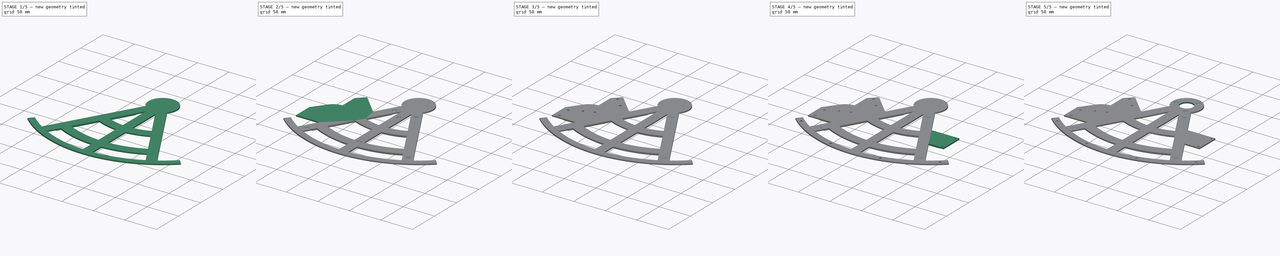
[diagram: build sequence overview — one tinted view per stage of 5, left to right]
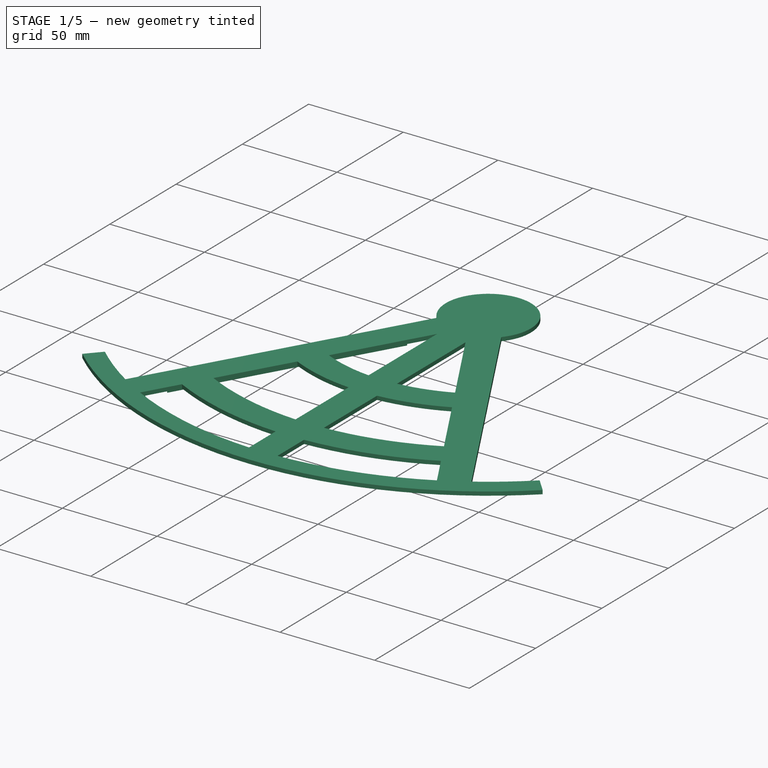
[diagram: stage 1 of 5 — iso view after this stage's code; geometry added in this stage tinted green]
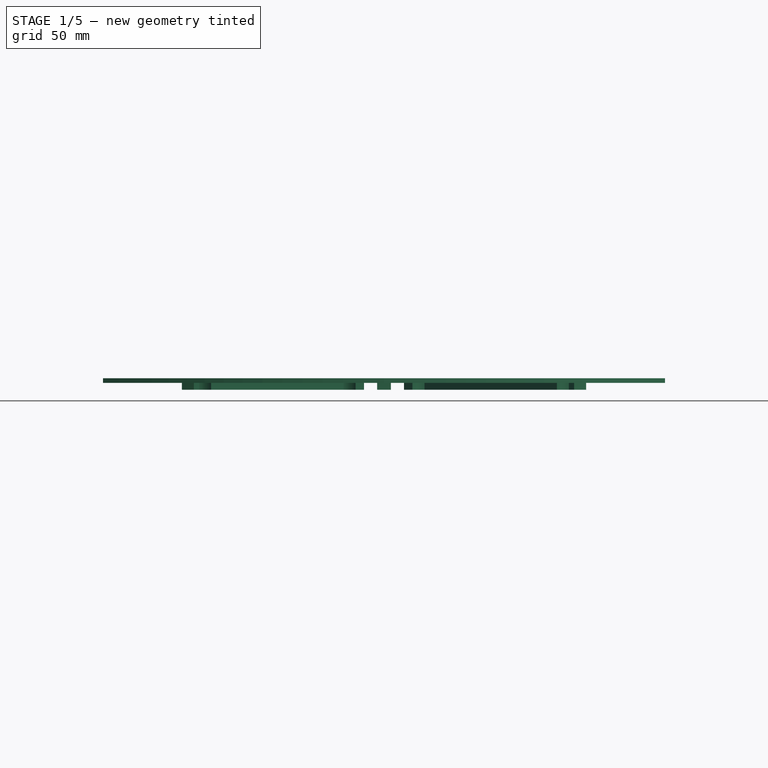
[diagram: stage 1 of 5 — front view after this stage's code; geometry added in this stage tinted green]
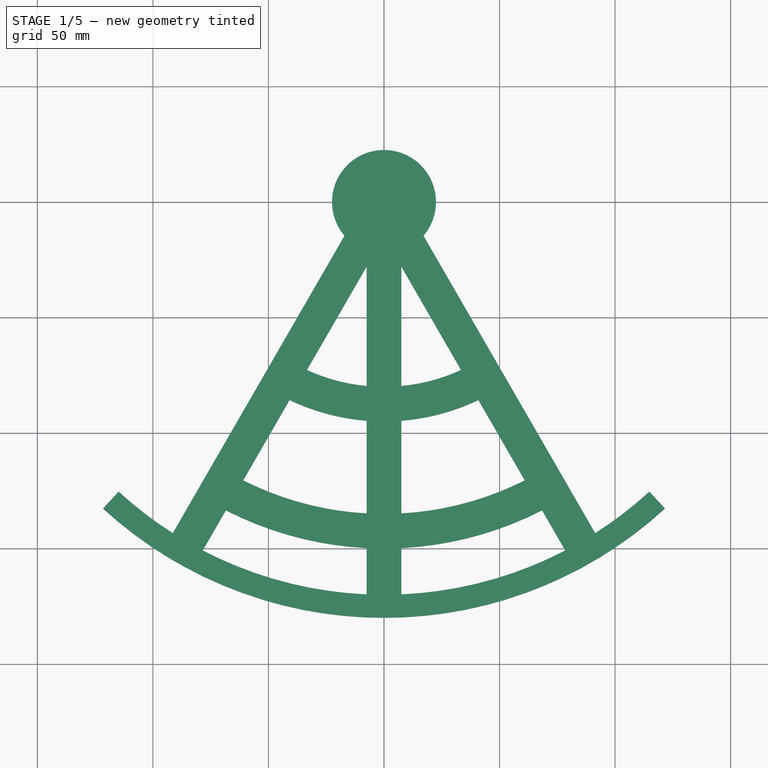
[diagram: stage 1 of 5 — top view after this stage's code; geometry added in this stage tinted green]
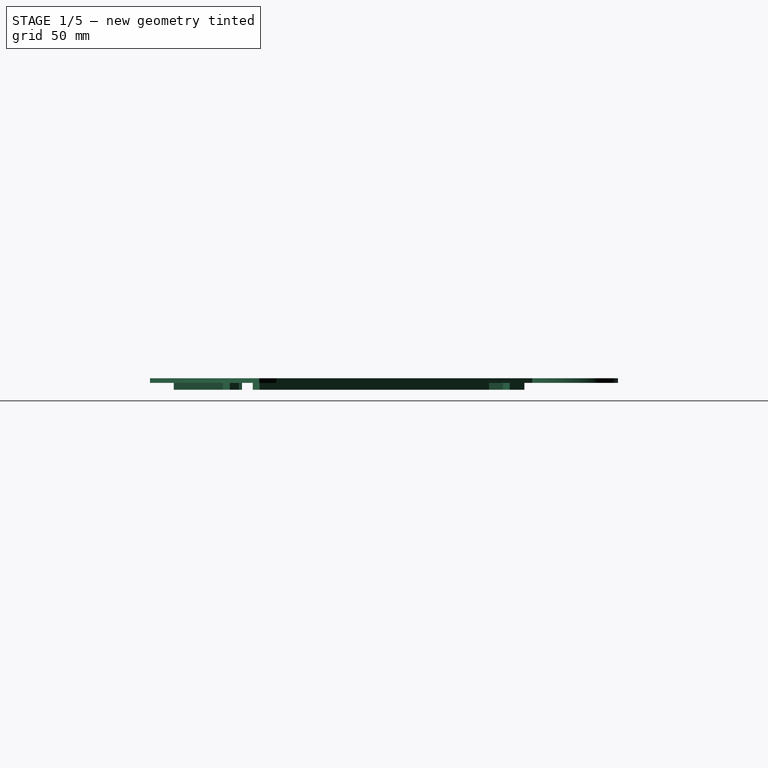
[diagram: stage 1 of 5 — right view after this stage's code; geometry added in this stage tinted green]
FCSTD DOCUMENT  (FreeCAD 1.0RUnknown)
Label: Frame
License: All rights reserved
LicenseURL: http://en.wikipedia.org/wiki/All_rights_reserved
objects: Sketcher::SketchObject×16, PartDesign::CoordinateSystem×9, PartDesign::Line×8, PartDesign::Pad×8, PartDesign::Hole×8, PartDesign::Plane×2, App::Link×1, PartDesign::SubShapeBinder×1, TechDraw::DrawSVGTemplate×1, PartDesign::Mirrored×1, PartDesign::Pocket×1, PartDesign::PolarPattern×1, PartDesign::Draft×1, PartDesign::Body×1, TechDraw::DrawViewPart×1, TechDraw::DrawPage×1
note: 111 computed .brp shape members not serialized (recipe doc carries the construction recipe); baked Part::Feature solids carry a one-line shape summary decoded from their .brp
EXTERNAL_REF file=Resources.FCStd obj=Spreadsheet
EXTERNAL_REF file=Scale.FCStd obj=Part002
EXTERNAL_REF file=HorizonMirror.FCStd obj=Sketch
EXTERNAL_REF file=Viewscope.FCStd obj=Sketch004
EXTERNAL_REF file=Shade.FCStd obj=Sketch010

FEATURE [App::Link] Link  label="Dimensions"
  LinkedObject = -> <external Resources.FCStd>#Spreadsheet
FEATURE [Sketcher::SketchObject] Sketch006
  ArcFitTolerance = 0
  AttachmentOffset = pos=(0,0,2) rot=(0,0,1;0rad)
  AttachmentSupport = -> [XY_Plane]
  FullyConstrained = true
  MakeInternals = false
  MapMode = 5
  Placement = pos=(0,0,2) rot=(0,0,1;0rad)
  expr: .AttachmentOffset.Base.z = <<Dimensions>>.frame_thickness
  expr: Constraints[3] = <<Dimensions>>.handle_connector_screw_diameter
  expr: Constraints[4] = <<Dimensions>>.handle_length - <<Dimensions>>.handle_outer_width
  expr: Constraints[6] = <<Dimensions>>.scale_outer_radius / 2
  sketch-geometry (3):
    g0: Circle CenterX=0 CenterY=-45 CenterZ=0 NormalX=0 NormalY=0 NormalZ=1 AngleXU=0 Radius=1.5
    g1: Circle CenterX=0 CenterY=-135 CenterZ=0 NormalX=0 NormalY=0 NormalZ=1 AngleXU=0 Radius=1.5
    g2: GeomPoint [constr] X=0 Y=-90 Z=0
  constraints (7):
    c: PointOnObject(g0,g-2)
    c: PointOnObject(g1,g-2)
    c: Equal(g1,g0)
    c: Diameter(g0) = 3
    c: Distance(g0,g1) = 90
    c: Symmetric(g0,g1,g2)
    c: DistanceY(g2,g-1) = 90
FEATURE [PartDesign::SubShapeBinder] Binder
  BindCopyOnChange = 0
  BindMode = 0
  ClaimChildren = false
  Context = -> Body [Hole.Binder.]
  Fuse = false
  MakeFace = true
  OffsetFill = false
  OffsetIntersection = false
  OffsetJoinType = 0
  OffsetOpenResult = false
  PartialLoad = false
  Placement = pos=(0,0,-4) rot=(0,0,1;0rad)
  Relative = true
  Support = -> [<external Scale.FCStd>#Part002[Body003.Sketch.]]
  _Version = 2
FEATURE [Sketcher::SketchObject] Sketch003
  ArcFitTolerance = 0
  AttachmentSupport = -> [XY_Plane]
  FullyConstrained = true
  MakeInternals = false
  MapMode = 5
  expr: Constraints[10] = <<Dimensions>>.view_center_offset_vert
  expr: Constraints[4] = <<Dimensions>>.viewscope_screw_diameter
  expr: Constraints[5] = <<Viewscope>>#Sketch004.Constraints.hole_distance
  sketch-geometry (6):
    g0: LineSegment [constr] StartX=85 StartY=-65.5 StartZ=0 EndX=85 EndY=-94.5 EndZ=0
    g1: Circle CenterX=85 CenterY=-65.5 CenterZ=0 NormalX=0 NormalY=0 NormalZ=1 AngleXU=0 Radius=1.5
    g2: Circle CenterX=85 CenterY=-94.5 CenterZ=0 NormalX=0 NormalY=0 NormalZ=1 AngleXU=0 Radius=1.5
    g3: GeomPoint [constr] X=85 Y=-80 Z=0
    g4: LineSegment [constr] StartX=85 StartY=-80 StartZ=0 EndX=0 EndY=-80 EndZ=0
    g5: GeomPoint [constr] X=0 Y=-80 Z=0
  constraints (14):
    c: Coincident(g1,g0)
    c: Coincident(g0,g2)
    c: Vertical(g0)
    c: Equal(g2,g1)
    c: Diameter(g1) = 3
    c: Distance(g0) = 29
    c: Symmetric(g1,g2,g3)
    c: Coincident(g4,g3)
    c: PointOnObject(g4,g-2)
    c: Horizontal(g4)
    c: DistanceY(g4,g-1) = 80
    c: PointOnObject(g5,g4)
    c: DistanceX(g5,g3) = 85
    c: PointOnObject(g5,g-2)
FEATURE [Sketcher::SketchObject] Sketch004
  ArcFitTolerance = 0
  AttachmentSupport = -> [XY_Plane]
  ExternalGeometry = -> [Sketch003]
  FullyConstrained = true
  MakeInternals = false
  MapMode = 5
  expr: Constraints[7] = <<Dimensions>>.viewscope_collar_thickness / 2
  expr: Constraints[8] = <<Dimensions>>.viewscope_collar_width / 2
  expr: Constraints[9] = <<Dimensions>>.viewscope_collar_width / 2
  sketch-geometry (6):
    g0: LineSegment StartX=35.7957 StartY=-62 StartZ=0 EndX=88.75 EndY=-62 EndZ=0
    g1: LineSegment StartX=88.75 StartY=-62 StartZ=0 EndX=88.75 EndY=-98 EndZ=0
    g2: LineSegment StartX=88.75 StartY=-98 StartZ=0 EndX=56.5803 EndY=-98 EndZ=0
    g3: LineSegment StartX=35.7957 StartY=-62 StartZ=0 EndX=56.5803 EndY=-98 EndZ=0
    g4: LineSegment [constr] StartX=0 StartY=0 StartZ=0 EndX=-35.7957 EndY=-62 EndZ=0
    g5: LineSegment [constr] StartX=0 StartY=0 StartZ=0 EndX=35.7957 EndY=-62 EndZ=0
  constraints (16):
    c: Horizontal(g0)
    c: Vertical(g1)
    c: Horizontal(g2)
    c: Coincident(g3,g0)
    c: Coincident(g3,g2)
    c: Coincident(g0,g1)
    c: Coincident(g2,g1)
    c: DistanceX(g-3,g0) = 3.75
    c: DistanceY(g-3,g0) = 3.5
    c: DistanceY(g1,g-4) = 3.5
    c: Coincident(g4,g-1)
    c: Coincident(g5,g4)
    c: Coincident(g0,g5)
    c: Parallel(g5,g3)
    c: Symmetric(g4,g0,g-2)
    c: Angle(g4,g5) = 1.0472
FEATURE [Sketcher::SketchObject] Sketch007
  ArcFitTolerance = 0
  AttachmentSupport = -> [XY_Plane]
  FullyConstrained = true
  MakeInternals = false
  MapMode = 5
  expr: Constraints[1] = <<Dimensions>>.bearing_Da
  sketch-geometry (1):
    g0: Circle CenterX=0 CenterY=0 CenterZ=0 NormalX=0 NormalY=0 NormalZ=1 AngleXU=0 Radius=10
  constraints (2):
    c: Coincident(g0,g-1)
    c: Diameter(g0) = 20
FEATURE [PartDesign::CoordinateSystem] LCS_Origin
  AttacherType = Attacher::AttachEngine3D
  AttachmentSupport = -> [X_Axis]
  MapMode = 2
FEATURE [PartDesign::CoordinateSystem] LCS_Handle
  AttacherType = Attacher::AttachEngine3D
  AttachmentOffset = pos=(0,0,-2) rot=(0,0,1;0rad)
  AttachmentSupport = -> [Sketch006]
  MapMode = 45
  Placement = pos=(7.1e-15,-90,-2e-16) rot=(0,0,1;0rad)
  expr: .AttachmentOffset.Base.z = -<<Dimensions>>.frame_thickness
FEATURE [PartDesign::Line] HoleAxis_1  label="HandleScrew1"
  AttacherType = Attacher::AttachEngineLine
  AttachmentSupport = -> [Sketch006]
  Length = 4.2272
  MapMode = 19
  Placement = pos=(0,-45,2) rot=(0,0,1;0rad)
  ResizeMode = 1
FEATURE [PartDesign::Line] HoleAxis_2  label="HandleScrew2"
  AttacherType = Attacher::AttachEngineLine
  AttachmentSupport = -> [Sketch006]
  Length = 4.2272
  MapMode = 19
  Placement = pos=(0,-135,2) rot=(0,0,1;0rad)
  ResizeMode = 1
FEATURE [PartDesign::CoordinateSystem] Local_CS001  label="LCS_Viewscope"
  AttacherType = Attacher::AttachEngine3D
  AttachmentOffset = pos=(0,0,2) rot=(0,0,1;0rad)
  AttachmentSupport = -> [Sketch003]
  MapMode = 45
  Placement = pos=(85,-80,2) rot=(0,0,1;0rad)
  expr: .AttachmentOffset.Base.z = <<Dimensions>>.frame_thickness
FEATURE [PartDesign::CoordinateSystem] Local_CS002  label="LCS_ShaftBot"
  AttacherType = Attacher::AttachEngine3D
  AttachmentOffset = pos=(0,0,0) rot=(0,0,-1;1.5708rad)
  AttachmentSupport = -> [Sketch007]
  MapMode = 11
FEATURE [PartDesign::CoordinateSystem] Local_CS003  label="LCS_Scale"
  AttacherType = Attacher::AttachEngine3D
  AttachmentOffset = pos=(0,0,2) rot=(0,0,1;0rad)
  AttachmentSupport = -> [X_Axis]
  MapMode = 2
  Placement = pos=(0,0,2) rot=(0,0,1;0rad)
  expr: .AttachmentOffset.Base.z = <<Dimensions>>.frame_thickness
FEATURE [TechDraw::DrawSVGTemplate] Template
  Height = 210
  Orientation = 1
  Template = /app/share/Mod/TechDraw/Templates/A4_Landscape_blank.svg
  Width = 297
FEATURE [PartDesign::Plane] DatumPlane  label="Plane_Bottom"
  AttachmentSupport = -> [XY_Plane]
  Length = 67.9716
  MapMode = 5
  ResizeMode = 0
  Width = 179.461
FEATURE [Sketcher::SketchObject] Sketch
  ArcFitTolerance = 0
  AttachmentSupport = -> [DatumPlane]
  ExternalGeometry = -> [Sketch006]
  FullyConstrained = true
  MakeInternals = false
  MapMode = 2
  expr: Constraints[11] = <<Dimensions>>.scale_width
  expr: Constraints[25] = <<Dimensions>>.frame_width
  expr: Constraints[26] = max(<<Dimensions>>.frame_width; <<Dimensions>>.handle_outer_width) / 2
  expr: Constraints[3] = <<Dimensions>>.scale_outer_radius
  expr: Constraints[4] = (<<Dimensions>>.scale_angle + 2 * <<Dimensions>>.scale_extra_angle) / 2
  expr: Constraints[5] = <<Dimensions>>.bearing_housing_diameter / 2
  sketch-geometry (11):
    g0: ArcOfCircle CenterX=0 CenterY=0 CenterZ=0 NormalX=0 NormalY=0 NormalZ=1 AngleXU=0 Radius=22.5 StartAngle=1.5708 EndAngle=3.84895
    g1: LineSegment StartX=-17.1018 StartY=-14.6212 StartZ=0 EndX=-91.4124 EndY=-143.331 EndZ=0
    g2: LineSegment StartX=-78.422 StartY=-150.831 StartZ=0 EndX=-7.5 EndY=-27.9904 EndZ=0
    g3: ArcOfCircle CenterX=0 CenterY=0 CenterZ=0 NormalX=0 NormalY=0 NormalZ=1 AngleXU=0 Radius=170 StartAngle=4.23292 EndAngle=4.66826
    g4: ArcOfCircle CenterX=0 CenterY=0 CenterZ=0 NormalX=0 NormalY=0 NormalZ=1 AngleXU=0 Radius=180 StartAngle=3.97062 EndAngle=4.71239
    g5: LineSegment StartX=-121.606 StartY=-132.71 StartZ=0 EndX=-114.85 EndY=-125.337 EndZ=0
    g6: ArcOfCircle CenterX=0 CenterY=0 CenterZ=0 NormalX=0 NormalY=0 NormalZ=1 AngleXU=0 Radius=170 StartAngle=3.97062 EndAngle=4.14466
    g7: LineSegment StartX=1.4e-15 StartY=22.5 StartZ=0 EndX=0 EndY=-180 EndZ=0
    g8: LineSegment StartX=-7.5 StartY=-27.9904 StartZ=0 EndX=-7.5 EndY=-169.834 EndZ=0
    g9: ArcOfCircle [constr] CenterX=0 CenterY=0 CenterZ=0 NormalX=0 NormalY=0 NormalZ=1 AngleXU=0 Radius=170 StartAngle=4.14466 EndAngle=4.23292
    g10: LineSegment [constr] StartX=0 StartY=0 StartZ=0 EndX=-84.9172 EndY=-147.081 EndZ=0
  constraints (32):
    c: Coincident(g3,g0)
    c: Coincident(g3,g2)
    c: Coincident(g0,g1)
    c: Radius(g4) = 180
    c: Angle(g4) = 0.741765
    c: Radius(g0) = 22.5
    c: PointOnObject(g4,g-1)
    c: Coincident(g5,g4)
    c: Coincident(g6,g5)
    c: Coincident(g6,g1)
    c: Perpendicular(g4,g5)
    c: Distance(g5) = 10
    c: Coincident(g6,g0)
    c: Parallel(g1,g2)
    c: PointOnObject(g4,g-2)
    c: Coincident(g7,g4)
    c: PointOnObject(g4,g-2)
    c: PointOnObject(g0,g-2)
    c: Coincident(g0,g4)
    c: Vertical(g8)
    c: Coincident(g2,g8)
    c: Coincident(g8,g3)
    c: Coincident(g0,g7)
    c: Coincident(g9,g1)
    c: Coincident(g9,g2)
    c: Distance(g1,g2) = 15
    c: DistanceX(g2,g0) = 7.5
    c: Coincident(g10,g0)
    c: Angle(g10,g7) = 0.523599
    c: Symmetric(g1,g2,g10)
    c: Parallel(g10,g1)
    c: Coincident(g9,g0)
FEATURE [Sketcher::SketchObject] Sketch002
  ArcFitTolerance = 0
  AttachmentSupport = -> [XY_Plane]
  ExternalGeometry = -> [Sketch]
  FullyConstrained = true
  MakeInternals = false
  MapMode = 5
  expr: Constraints[12] = <<Dimensions>>.view_center_offset_vert
  expr: Constraints[17] = HorizonMirror#Sketch.Constraints.hole_distance
  expr: Constraints[18] = <<Dimensions>>.horizon_mirror_offset
  expr: Constraints[9] = <<Dimensions>>.horizon_mirror_screw_diameter
  sketch-geometry (7):
    g0: LineSegment [constr] StartX=0 StartY=-80 StartZ=0 EndX=-80 EndY=-80 EndZ=0
    g1: LineSegment [constr] StartX=-87.2617 StartY=-83.0079 StartZ=0 EndX=-72.7383 EndY=-76.9921 EndZ=0
    g2: LineSegment [constr] StartX=-72.7383 StartY=-76.9921 StartZ=0 EndX=-72.7383 EndY=-80 EndZ=0
    g3: Circle CenterX=-87.2617 CenterY=-83.0079 CenterZ=0 NormalX=0 NormalY=0 NormalZ=1 AngleXU=0 Radius=1.5
    g4: Circle CenterX=-72.7383 CenterY=-76.9921 CenterZ=0 NormalX=0 NormalY=0 NormalZ=1 AngleXU=0 Radius=1.5
    g5: LineSegment [constr] StartX=-80 StartY=-80 StartZ=0 EndX=0 EndY=0 EndZ=0
    g6: LineSegment [constr] StartX=-72.7383 StartY=-76.9921 StartZ=0 EndX=-74.8652 EndY=-74.8652 EndZ=0
  constraints (19):
    c: PointOnObject(g0,g-2)
    c: Horizontal(g0)
    c: Symmetric(g1,g1,g0)
    c: Coincident(g2,g1)
    c: PointOnObject(g2,g0)
    c: Perpendicular(g2,g0)
    c: Coincident(g3,g1)
    c: Coincident(g4,g1)
    c: Equal(g4,g3)
    c: Diameter(g3) = 3
    c: Coincident(g5,g0)
    c: Coincident(g5,g-1)
    c: DistanceY(g0,g5) = 80
    c: Coincident(g6,g4)
    c: PointOnObject(g6,g5)
    c: Perpendicular(g6,g5)
    c: Equal(g6,g2)
    c: Distance(g1) = 15.72
    c: DistanceX(g0,g0) = 80
FEATURE [PartDesign::CoordinateSystem] Local_CS  label="LCS_HorizonMirror"
  AttacherType = Attacher::AttachEngine3D
  AttachmentOffset = pos=(0,0,2) rot=(0,0,1;0rad)
  AttachmentSupport = -> [Sketch002]
  MapMode = 45
  Placement = pos=(-80,-80,2) rot=(0,0,1;1.96349rad)
  expr: .AttachmentOffset.Base.z = <<Dimensions>>.frame_thickness
FEATURE [PartDesign::Plane] DatumPlane001  label="Plane_Top"
  AttachmentOffset = pos=(0,0,2) rot=(0,0,1;0rad)
  AttachmentSupport = -> [DatumPlane]
  Length = 67.9716
  MapMode = 5
  Placement = pos=(0,0,2) rot=(0,0,1;0rad)
  ResizeMode = 0
  Width = 179.461
  expr: .AttachmentOffset.Base.z = <<Dimensions>>.frame_thickness
FEATURE [PartDesign::Pad] Pad
  Direction = (0,0,1)
  Length = 2
  Length2 = 10
  Profile = -> Sketch
  ReferenceAxis = -> Sketch [N_Axis]
  Suppressed = false
  Type = 3
  UpToFace = -> DatumPlane001
  expr: Length = <<Dimensions>>.frame_thickness
FEATURE [Sketcher::SketchObject] Sketch008
  ArcFitTolerance = 0
  AttachmentSupport = -> [DatumPlane001]
  FullyConstrained = true
  MakeInternals = false
  MapMode = 5
  Placement = pos=(0,0,2) rot=(0,0,1;0rad)
  expr: Constraints[1] = <<Dimensions>>.bearing_D / 4 + <<Dimensions>>.bearing_housing_diameter / 4
  expr: Constraints[2] = <<Dimensions>>.bearing_housing_screw_diameter
  sketch-geometry (1):
    g0: Circle CenterX=-16.75 CenterY=0 CenterZ=0 NormalX=0 NormalY=0 NormalZ=1 AngleXU=0 Radius=1.5
  constraints (3):
    c: PointOnObject(g0,g-1)
    c: DistanceX(g0,g-1) = 16.75
    c: Diameter(g0) = 3
FEATURE [PartDesign::CoordinateSystem] Local_CS004  label="LCS_BearingHousingScrew"
  AttacherType = Attacher::AttachEngine3D
  AttachmentSupport = -> [Sketch008]
  MapMode = 11
  Placement = pos=(-16.75,0,2) rot=(0,0,1;1.5708rad)
FEATURE [Sketcher::SketchObject] Sketch009
  ArcFitTolerance = 0
  AttachmentSupport = -> [DatumPlane]
  FullyConstrained = true
  MakeInternals = false
  MapMode = 5
  expr: Constraints[23] = <<Dimensions>>.frame_width
  sketch-geometry (11):
    g0: ArcOfCircle CenterX=0 CenterY=0 CenterZ=0 NormalX=0 NormalY=0 NormalZ=1 AngleXU=0 Radius=150 StartAngle=4.18879 EndAngle=5.23599
    g1: ArcOfCircle CenterX=0 CenterY=0 CenterZ=0 NormalX=0 NormalY=0 NormalZ=1 AngleXU=0 Radius=135 StartAngle=4.18879 EndAngle=5.23599
    g2: ArcOfCircle CenterX=0 CenterY=0 CenterZ=0 NormalX=0 NormalY=0 NormalZ=1 AngleXU=0 Radius=80 StartAngle=4.18879 EndAngle=5.23599
    g3: ArcOfCircle CenterX=0 CenterY=0 CenterZ=0 NormalX=0 NormalY=0 NormalZ=1 AngleXU=0 Radius=95 StartAngle=4.18879 EndAngle=5.23599
    g4: LineSegment [constr] StartX=0 StartY=0 StartZ=0 EndX=-75 EndY=-129.904 EndZ=0
    g5: LineSegment [constr] StartX=0 StartY=0 StartZ=0 EndX=75 EndY=-129.904 EndZ=0
    g6: LineSegment StartX=-75 StartY=-129.904 StartZ=0 EndX=-67.5 EndY=-116.913 EndZ=0
    g7: LineSegment StartX=-47.5 StartY=-82.2724 StartZ=0 EndX=-40 EndY=-69.282 EndZ=0
    g8: LineSegment StartX=40 StartY=-69.282 StartZ=0 EndX=47.5 EndY=-82.2724 EndZ=0
    g9: LineSegment StartX=67.5 StartY=-116.913 StartZ=0 EndX=75 EndY=-129.904 EndZ=0
    g10: GeomPoint [constr] X=0 Y=-129.904 Z=0
  constraints (29):
    c: Coincident(g0,g-1)
    c: Coincident(g1,g0)
    c: Coincident(g2,g0)
    c: Coincident(g3,g0)
    c: Coincident(g4,g0)
    c: Coincident(g4,g0)
    c: PointOnObject(g1,g4)
    c: PointOnObject(g3,g4)
    c: PointOnObject(g2,g4)
    c: Coincident(g5,g0)
    c: Coincident(g5,g0)
    c: PointOnObject(g3,g5)
    c: PointOnObject(g2,g5)
    c: PointOnObject(g1,g5)
    c: Coincident(g6,g0)
    c: Coincident(g6,g1)
    c: Coincident(g7,g3)
    c: Coincident(g7,g2)
    c: Coincident(g8,g2)
    c: Coincident(g8,g3)
    c: Coincident(g9,g1)
    c: Coincident(g9,g0)
    c: Equal(g9,g8)
    c: Distance(g9) = 15
    c: Distance(g2,g0) = 80
    c: PointOnObject(g10,g-2)
    c: Symmetric(g0,g0,g10)
    c: Distance(g3,g1) = 40
    c: Angle(g4,g5) = 1.0472
FEATURE [Sketcher::SketchObject] Sketch010  label="Sketch_IndexShade"
  ArcFitTolerance = 0
  AttachmentSupport = -> [DatumPlane001]
  ExternalGeometry = -> [Sketch002]
  FullyConstrained = true
  MakeInternals = false
  MapMode = 5
  Placement = pos=(0,0,2) rot=(0,0,1;0rad)
  expr: Constraints[3] = 90 ° + 2 * <<Dimensions>>.horizon_mirror_angle
  expr: Constraints[9] = Shade#Sketch010.Constraints.total_width / 2
  sketch-geometry (6):
    g0: Circle CenterX=-71.5465 CenterY=-27.4485 CenterZ=0 NormalX=0 NormalY=0 NormalZ=1 AngleXU=0 Radius=1.5
    g1: Circle CenterX=-57.4043 CenterY=-41.5906 CenterZ=0 NormalX=0 NormalY=0 NormalZ=1 AngleXU=0 Radius=1.5
    g2: LineSegment [constr] StartX=-71.5465 StartY=-27.4485 StartZ=0 EndX=-57.4043 EndY=-41.5906 EndZ=0
    g3: LineSegment [constr] StartX=0 StartY=0 StartZ=0 EndX=-49.4975 EndY=-49.4975 EndZ=0
    g4: GeomPoint [constr] X=-64.4754 Y=-34.5196 Z=0
    g5: LineSegment [constr] StartX=-64.4754 StartY=-34.5196 StartZ=0 EndX=-49.4975 EndY=-49.4975 EndZ=0
  constraints (14):
    c: Coincident(g2,g0)
    c: Coincident(g2,g1)
    c: Coincident(g3,g-1)
    c: Angle(g-2,g3) = 2.35619
    c: Symmetric(g0,g1,g4)
    c: Distance(g0,g1) = 20
    c: Coincident(g5,g4)
    c: Coincident(g5,g3)
    c: Perpendicular(g3,g5)
    c: Distance(g5) = 21.182
    c: Distance(g3) = 70
    c: Equal(g1,g0)
    c: Diameter(g0) = 3
    c: PointOnObject(g1,g5)
FEATURE [PartDesign::CoordinateSystem] Local_CS005  label="LCS_IndexShade"
  AttacherType = Attacher::AttachEngine3D
  AttachmentSupport = -> [Sketch010]
  MapMode = 45
  Placement = pos=(-64.4754,-34.5196,2) rot=(0,0,1;0.785398rad)
FEATURE [Sketcher::SketchObject] Sketch013  label="Sketch_HorizonShade"
  ArcFitTolerance = 0
  AttachmentSupport = -> [DatumPlane001]
  ExternalGeometry = -> [Sketch002]
  FullyConstrained = true
  MakeInternals = false
  MapMode = 5
  Placement = pos=(0,0,2) rot=(0,0,1;0rad)
  expr: Constraints[7] = Shade#Sketch010.Constraints.total_width / 2
  sketch-geometry (4):
    g0: Circle CenterX=-105 CenterY=-111.182 CenterZ=0 NormalX=0 NormalY=0 NormalZ=1 AngleXU=0 Radius=1.5
    g1: Circle CenterX=-105 CenterY=-91.182 CenterZ=0 NormalX=0 NormalY=0 NormalZ=1 AngleXU=0 Radius=1.5
    g2: GeomPoint [constr] X=-80 Y=-80 Z=0
    g3: GeomPoint [constr] X=-105 Y=-101.182 Z=0
  constraints (8):
    c: Symmetric(g-3,g-4,g2)
    c: Equal(g0,g1)
    c: Diameter(g0) = 3
    c: Distance(g0,g1) = 20
    c: DistanceX(g1,g2) = 25
    c: Symmetric(g1,g0,g3)
    c: Vertical(g1,g0)
    c: DistanceY(g3,g2) = 21.182
FEATURE [Sketcher::SketchObject] Sketch001  label="Sketch_HorizonMirror"
  ArcFitTolerance = 0
  AttachmentSupport = -> [XY_Plane]
  ExternalGeometry = -> [Sketch002,Sketch010,Sketch013]
  FullyConstrained = true
  MakeInternals = false
  MapMode = 5
  expr: Constraints[10] = <<Dimensions>>.horizon_mirror_mirror_width + 2 * <<Dimensions>>.mirror_frame_width
  expr: Constraints[29] = 15
  sketch-geometry (15):
    g0: LineSegment StartX=-67.0777 StartY=-116.182 StartZ=0 EndX=-31.9642 EndY=-55.3635 EndZ=0
    g1: LineSegment [constr] StartX=-87.2617 StartY=-83.0079 StartZ=0 EndX=0 EndY=0 EndZ=0
    g2: LineSegment [constr] StartX=0 StartY=0 StartZ=0 EndX=-31.9642 EndY=-55.3635 EndZ=0
    g3: LineSegment [constr] StartX=0 StartY=0 StartZ=0 EndX=31.9642 EndY=-55.3635 EndZ=0
    g4: GeomPoint [constr] X=-80 Y=-80 Z=0
    g5: ArcOfCircle CenterX=-80 CenterY=-80 CenterZ=0 NormalX=0 NormalY=0 NormalZ=1 AngleXU=0 Radius=23 StartAngle=1.61062 EndAngle=2.50249
    g6: LineSegment StartX=-69.2484 StartY=-18.0793 StartZ=0 EndX=-31.9642 EndY=-55.3635 EndZ=0
    g7: LineSegment StartX=-69.2484 StartY=-18.0793 StartZ=0 EndX=-80.9156 EndY=-29.7466 EndZ=0
    g8: LineSegment [constr] StartX=-75.082 StartY=-23.913 StartZ=0 EndX=-57.4043 EndY=-41.5906 EndZ=0
    g9: LineSegment [constr] StartX=-64.4754 StartY=-34.5196 StartZ=0 EndX=-58.6418 EndY=-28.6859 EndZ=0
    g10: LineSegment StartX=-80.9156 StartY=-29.7466 StartZ=0 EndX=-80.9156 EndY=-57.0182 EndZ=0
    g11: LineSegment StartX=-113.25 StartY=-86.182 StartZ=0 EndX=-113.25 EndY=-116.182 EndZ=0
    g12: LineSegment StartX=-113.25 StartY=-116.182 StartZ=0 EndX=-67.0777 EndY=-116.182 EndZ=0
    g13: GeomPoint [constr] X=-105 Y=-101.182 Z=0
    g14: LineSegment StartX=-113.25 StartY=-86.182 StartZ=0 EndX=-98.4605 EndY=-66.281 EndZ=0
  constraints (36):
    c: Coincident(g1,g-1)
    c: Coincident(g2,g1)
    c: Coincident(g3,g1)
    c: Symmetric(g0,g3,g-2)
    c: Angle(g2,g3) = 1.0472
    c: Parallel(g0,g2)
    c: Coincident(g5,g4)
    c: Coincident(g5,g10) = 1.5708
    c: Coincident(g-3,g1)
    c: Symmetric(g-4,g1,g5)
    c: Diameter(g5) = 46
    c: Coincident(g7,g6)
    c: Perpendicular(g6,g7)
    c: Coincident(g8,g-6)
    c: Parallel(g8,g6)
    c: PointOnObject(g9,g6)
    c: Perpendicular(g8,g9)
    c: Coincident(g10,g7)
    c: Vertical(g10)
    c: Distance(g7) = 16.5
    c: PointOnObject(g-5,g8)
    c: Symmetric(g-5,g8,g9)
    c: Symmetric(g7,g6,g8)
    c: Distance(g6,g9) = 15
    c: Vertical(g11)
    c: Coincident(g12,g11)
    c: Coincident(g12,g0)
    c: Horizontal(g12)
    c: Symmetric(g-8,g-7,g13)
    c: DistanceY(g11,g13) = 15
    c: DistanceX(g11,g13) = 8.25
    c: Coincident(g14,g11)
    c: Tangent(g14,g5) = 1.5708
    c: Distance(g11) = 30
    c: Coincident(g0,g6)
    c: Coincident(g0,g2)
FEATURE [PartDesign::CoordinateSystem] Local_CS006  label="LCS_HorizonShade"
  AttacherType = Attacher::AttachEngine3D
  AttachmentSupport = -> [Sketch013]
  MapMode = 45
  Placement = pos=(-105,-101.182,2) rot=(0,0,1;0rad)
FEATURE [Sketcher::SketchObject] Sketch015
  ArcFitTolerance = 0
  AttachmentSupport = -> [DatumPlane]
  ExternalGeometry = -> [Sketch009]
  FullyConstrained = true
  MakeInternals = false
  MapMode = 5
  sketch-geometry (12):
    g0: ArcOfCircle CenterX=0 CenterY=0 CenterZ=0 NormalX=0 NormalY=0 NormalZ=1 AngleXU=0 Radius=84.5 StartAngle=4.18879 EndAngle=5.23599
    g1: ArcOfCircle CenterX=0 CenterY=0 CenterZ=0 NormalX=0 NormalY=0 NormalZ=1 AngleXU=0 Radius=90.5 StartAngle=4.18879 EndAngle=5.23599
    g2: ArcOfCircle CenterX=0 CenterY=0 CenterZ=0 NormalX=0 NormalY=0 NormalZ=1 AngleXU=0 Radius=139.5 StartAngle=4.18879 EndAngle=5.23599
    g3: ArcOfCircle CenterX=0 CenterY=0 CenterZ=0 NormalX=0 NormalY=0 NormalZ=1 AngleXU=0 Radius=145.5 StartAngle=4.18879 EndAngle=5.23599
    g4: LineSegment StartX=-42.25 StartY=-73.1791 StartZ=0 EndX=-45.25 EndY=-78.3753 EndZ=0
    g5: LineSegment StartX=42.25 StartY=-73.1791 StartZ=0 EndX=45.25 EndY=-78.3753 EndZ=0
    g6: LineSegment StartX=-69.75 StartY=-120.811 StartZ=0 EndX=-72.75 EndY=-126.007 EndZ=0
    g7: LineSegment StartX=69.75 StartY=-120.811 StartZ=0 EndX=72.75 EndY=-126.007 EndZ=0
    g8: LineSegment [constr] StartX=-40 StartY=-69.282 StartZ=0 EndX=-42.25 EndY=-73.1791 EndZ=0
    g9: LineSegment [constr] StartX=-45.25 StartY=-78.3753 StartZ=0 EndX=-47.5 EndY=-82.2724 EndZ=0
    g10: LineSegment [constr] StartX=-69.75 StartY=-120.811 StartZ=0 EndX=-67.5 EndY=-116.913 EndZ=0
    g11: LineSegment [constr] StartX=-72.75 StartY=-126.007 StartZ=0 EndX=-75 EndY=-129.904 EndZ=0
  constraints (32):
    c: Coincident(g0,g-9)
    c: PointOnObject(g0,g-3)
    c: PointOnObject(g0,g-6)
    c: Coincident(g1,g0)
    c: PointOnObject(g1,g-6)
    c: PointOnObject(g1,g-3)
    c: Coincident(g2,g0)
    c: PointOnObject(g2,g-10)
    c: PointOnObject(g2,g-7)
    c: Coincident(g3,g0)
    c: PointOnObject(g3,g-7)
    c: PointOnObject(g3,g-10)
    c: Coincident(g4,g0)
    c: Coincident(g4,g1)
    c: Coincident(g5,g0)
    c: Coincident(g5,g1)
    c: Coincident(g6,g2)
    c: Coincident(g6,g3)
    c: Coincident(g7,g2)
    c: Coincident(g7,g3)
    c: Coincident(g8,g-5)
    c: Coincident(g8,g0)
    c: Coincident(g9,g1)
    c: Coincident(g9,g-4)
    c: Equal(g9,g8)
    c: Distance(g4) = 6
    c: Coincident(g10,g2)
    c: Coincident(g10,g-10)
    c: Coincident(g11,g3)
    c: Coincident(g11,g-10)
    c: Equal(g10,g11)
    c: Distance(g6) = 6
FEATURE [Sketcher::SketchObject] Sketch016  label="Sketch_HolesStand"
  ArcFitTolerance = 0
  AttachmentSupport = -> [DatumPlane001]
  FullyConstrained = true
  MakeInternals = false
  MapMode = 5
  Placement = pos=(0,0,2) rot=(0,0,1;0rad)
  sketch-geometry (5):
    g0: Circle CenterX=-80 CenterY=-138.564 CenterZ=0 NormalX=0 NormalY=0 NormalZ=1 AngleXU=0 Radius=1.5
    g1: Circle CenterX=-17.5 CenterY=-30.3109 CenterZ=0 NormalX=0 NormalY=0 NormalZ=1 AngleXU=0 Radius=1.5
    g2: Circle CenterX=17.5 CenterY=-30.3109 CenterZ=0 NormalX=0 NormalY=0 NormalZ=1 AngleXU=0 Radius=1.5
    g3: Circle CenterX=80 CenterY=-138.564 CenterZ=0 NormalX=0 NormalY=0 NormalZ=1 AngleXU=0 Radius=1.5
    g4: LineSegment [constr] StartX=0 StartY=0 StartZ=0 EndX=-80 EndY=-138.564 EndZ=0
  constraints (12):
    c: Coincident(g4,g-1)
    c: Coincident(g4,g0)
    c: Equal(g1,g2)
    c: Equal(g2,g0)
    c: Equal(g0,g3)
    c: Symmetric(g1,g2,g-2)
    c: Diameter(g1) = 3
    c: Symmetric(g0,g3,g-2)
    c: Angle(g-2,g4) = 2.61799
    c: Distance(g1,g4) = 35
    c: Distance(g4,g0) = 160
    c: PointOnObject(g1,g4)
FEATURE [Sketcher::SketchObject] Sketch014
  ArcFitTolerance = 0
  AttachmentSupport = -> [DatumPlane]
  ExternalGeometry = -> [Sketch,Sketch016,Sketch006]
  FullyConstrained = true
  MakeInternals = false
  MapMode = 5
  expr: Constraints[10] = <<Dimensions>>.clearance_loose_fit
  expr: Constraints[21] = 22.5 mm + <<Dimensions>>.clearance_loose_fit
  sketch-geometry (30):
    g0: LineSegment StartX=-13.8737 StartY=-18.03 StartZ=0 EndX=-17.5 EndY=-24.3109 EndZ=0
    g1: LineSegment StartX=-8.67759 StartY=-21.03 StartZ=0 EndX=-12.3038 EndY=-27.3109 EndZ=0
    g2: LineSegment [constr] StartX=-91.4124 StartY=-143.331 StartZ=0 EndX=-87.4598 EndY=-145.485 EndZ=0
    g3: LineSegment [constr] StartX=-82.2637 StartY=-148.485 StartZ=0 EndX=-78.422 EndY=-150.831 EndZ=0
    g4: ArcOfCircle [constr] CenterX=1.581e-13 CenterY=-7.68e-14 CenterZ=0 NormalX=0 NormalY=0 NormalZ=1 AngleXU=0 Radius=170 StartAngle=4.14466 EndAngle=4.23292
    g5: GeomPoint [constr] X=-85 Y=-147.224 Z=0
    g6: LineSegment [constr] StartX=-85 StartY=-147.224 StartZ=0 EndX=-84.875 EndY=-147.008 EndZ=0
    g7: GeomPoint [constr] X=-84.9172 Y=-147.081 Z=0
    g8: LineSegment StartX=-3 StartY=-169.723 StartZ=0 EndX=-3 EndY=-140.196 EndZ=0
    g9: ArcOfCircle CenterX=1.581e-13 CenterY=-7.68e-14 CenterZ=0 NormalX=0 NormalY=0 NormalZ=1 AngleXU=0 Radius=169.75 StartAngle=4.69472 EndAngle=4.71239
    g10: ArcOfCircle CenterX=1.581e-13 CenterY=-7.68e-14 CenterZ=0 NormalX=0 NormalY=0 NormalZ=1 AngleXU=0 Radius=22.75 StartAngle=4.05654 EndAngle=4.32104
    g11: ArcOfCircle CenterX=1.581e-13 CenterY=-7.68e-14 CenterZ=0 NormalX=0 NormalY=0 NormalZ=1 AngleXU=0 Radius=169.75 StartAngle=4.17112 EndAngle=4.20646
    g12: LineSegment StartX=-7.7e-15 StartY=-22.75 StartZ=0 EndX=4e-16 EndY=-39 EndZ=0
    g13: ArcOfCircle CenterX=-80 CenterY=-138.564 CenterZ=0 NormalX=0 NormalY=0 NormalZ=1 AngleXU=0 Radius=6 StartAngle=0.523599 EndAngle=1.5708
    g14: ArcOfCircle CenterX=-80 CenterY=-138.564 CenterZ=0 NormalX=0 NormalY=0 NormalZ=1 AngleXU=0 Radius=6 StartAngle=3.66519 EndAngle=4.71239
    g15: LineSegment StartX=-85.1962 StartY=-141.564 StartZ=0 EndX=-87.4598 EndY=-145.485 EndZ=0
    g16: LineSegment StartX=-80 StartY=-144.564 StartZ=0 EndX=-82.2637 EndY=-148.485 EndZ=0
    g17: ArcOfCircle CenterX=-17.5 CenterY=-30.3109 CenterZ=0 NormalX=0 NormalY=0 NormalZ=1 AngleXU=0 Radius=6 StartAngle=0.523599 EndAngle=1.5708
    g18: ArcOfCircle CenterX=-17.5 CenterY=-30.3109 CenterZ=0 NormalX=0 NormalY=0 NormalZ=1 AngleXU=0 Radius=6 StartAngle=3.66519 EndAngle=4.71239
    g19: LineSegment StartX=-22.6962 StartY=-33.3109 StartZ=0 EndX=-80 EndY=-132.564 EndZ=0
    g20: LineSegment StartX=-17.5 StartY=-36.3109 StartZ=0 EndX=-74.8038 EndY=-135.564 EndZ=0
    g21: ArcOfCircle CenterX=0 CenterY=-45 CenterZ=0 NormalX=0 NormalY=0 NormalZ=1 AngleXU=0 Radius=6 StartAngle=1.5708 EndAngle=2.0944
    g22: ArcOfCircle CenterX=0 CenterY=-45 CenterZ=0 NormalX=0 NormalY=0 NormalZ=1 AngleXU=0 Radius=6 StartAngle=4.18879 EndAngle=4.71239
    g23: ArcOfCircle CenterX=0 CenterY=-135 CenterZ=0 NormalX=0 NormalY=0 NormalZ=1 AngleXU=0 Radius=6 StartAngle=1.5708 EndAngle=2.0944
    g24: ArcOfCircle CenterX=0 CenterY=-135 CenterZ=0 NormalX=0 NormalY=0 NormalZ=1 AngleXU=0 Radius=6 StartAngle=4.18879 EndAngle=4.71239
    g25: LineSegment StartX=-1.1e-15 StartY=-51 StartZ=0 EndX=4e-16 EndY=-129 EndZ=0
    g26: LineSegment StartX=-3 StartY=-39.8038 StartZ=0 EndX=-3 EndY=-22.5513 EndZ=0
    g27: LineSegment StartX=-1.1e-15 StartY=-141 StartZ=0 EndX=-2.39e-14 EndY=-169.75 EndZ=0
    g28: LineSegment StartX=-3 StartY=-129.804 StartZ=0 EndX=-3 EndY=-50.1962 EndZ=0
    g29: ArcOfCircle CenterX=1.581e-13 CenterY=-7.68e-14 CenterZ=0 NormalX=0 NormalY=0 NormalZ=1 AngleXU=0 Radius=22.75 StartAngle=4.58014 EndAngle=4.71239
  constraints (79):
    c: Coincident(g2,g-3)
    c: Coincident(g2,g15)
    c: Coincident(g3,g16)
    c: Coincident(g3,g-4)
    c: Equal(g3,g2)
    c: Coincident(g4,g2)
    c: Coincident(g4,g3)
    c: PointOnObject(g5,g4)
    c: Coincident(g6,g5)
    c: Perpendicular(g4,g6)
    c: Distance(g6) = 0.25
    c: Symmetric(g2,g3,g7)
    c: PointOnObject(g7,g6)
    c: Parallel(g-3,g0)
    c: Equal(g-6,g4)
    c: Coincident(g9,g8)
    c: PointOnObject(g9,g-2)
    c: Parallel(g8,g-7)
    c: DistanceX(g8,g9) = 3
    c: Coincident(g10,g9)
    c: Coincident(g10,g0)
    c: Radius(g10) = 22.75
    c: Coincident(g9,g4)
    c: Coincident(g11,g15)
    c: Coincident(g11,g16)
    c: PointOnObject(g6,g11)
    c: Coincident(g11,g9)
    c: Distance(g15,g16) = 6
    c: Equal(g11,g9)
    c: PointOnObject(g29,g-2)
    c: Coincident(g12,g29)
    c: Coincident(g27,g9)
    c: Coincident(g13,g-9)
    c: Coincident(g14,g13)
    c: Radius(g13) = 6
    c: Coincident(g19,g13)
    c: Coincident(g15,g14)
    c: Coincident(g20,g13)
    c: Coincident(g16,g14)
    c: Equal(g14,g13)
    c: Tangent(g15,g0)
    c: Coincident(g17,g-8)
    c: Coincident(g18,g17)
    c: Coincident(g0,g17)
    c: Coincident(g19,g18)
    c: Coincident(g1,g17)
    c: Coincident(g20,g18)
    c: Equal(g17,g18)
    c: Equal(g18,g13)
    c: Tangent(g20,g1)
    c: Tangent(g19,g0)
    c: Coincident(g21,g-10)
    c: Coincident(g22,g21)
    c: Coincident(g23,g-11)
    c: Coincident(g24,g23)
    c: Equal(g24,g23)
    c: Equal(g23,g22)
    c: Equal(g22,g21)
    c: Radius(g21) = 6
    c: Coincident(g12,g21)
    c: Coincident(g28,g22)
    c: Coincident(g26,g21)
    c: Coincident(g8,g24)
    c: Coincident(g28,g23)
    c: Coincident(g27,g24)
    c: PointOnObject(g24,g-2)
    c: Tangent(g8,g28)
    c: Coincident(g25,g23)
    c: PointOnObject(g23,g-2)
    c: Coincident(g22,g25)
    c: PointOnObject(g22,g-2)
    c: PointOnObject(g12,g-2)
    c: Tangent(g26,g28)
    c: Equal(g10,g29)
    c: Coincident(g10,g1)
    c: Coincident(g29,g26)
    c: Coincident(g10,g29)
    c: Tangent(g16,g20)
    c: Parallel(g20,g-4)
FEATURE [PartDesign::Pad] Pad006
  BaseFeature = -> Pad
  Direction = (0,0,1)
  Length = 3
  Length2 = 10
  Profile = -> Sketch014
  ReferenceAxis = -> Sketch014 [N_Axis]
  Reversed = true
  Suppressed = false
  Type = 0
FEATURE [PartDesign::Mirrored] Mirrored
  BaseFeature = -> Pad006
  MirrorPlane = -> Sketch [V_Axis]
  Originals = -> [Pad,Pad006]
  Refine = true
  Suppressed = false
  TransformMode = 0
FEATURE [PartDesign::Pad] Pad003
  BaseFeature = -> Mirrored
  Direction = (0,0,1)
  Length = 10
  Length2 = 10
  Profile = -> Sketch009
  ReferenceAxis = -> Sketch009 [N_Axis]
  Refine = true
  Suppressed = false
  Type = 3
  UpToFace = -> DatumPlane001 [Plane]
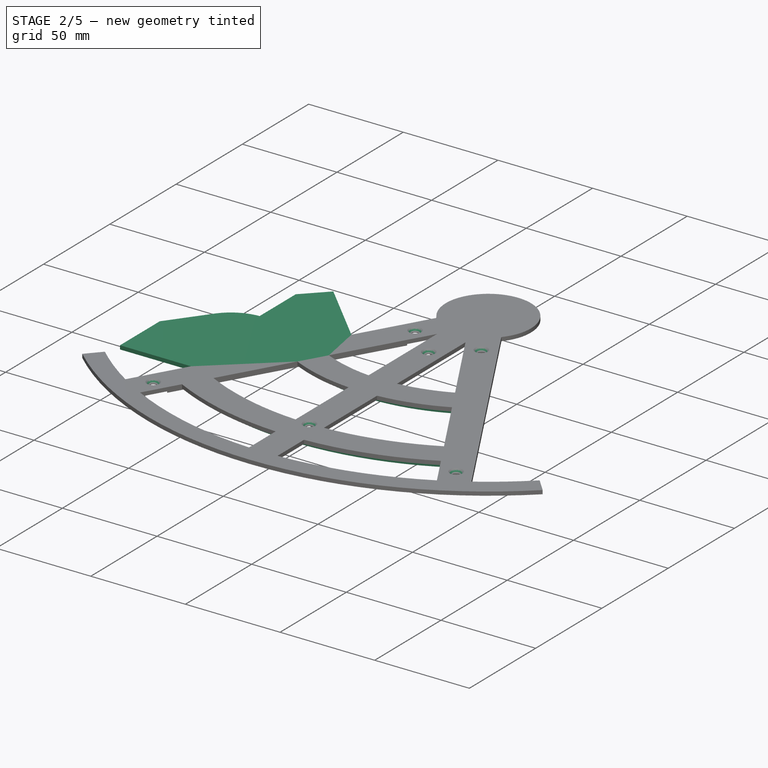
[diagram: stage 2 of 5 — iso view after this stage's code; geometry added in this stage tinted green]
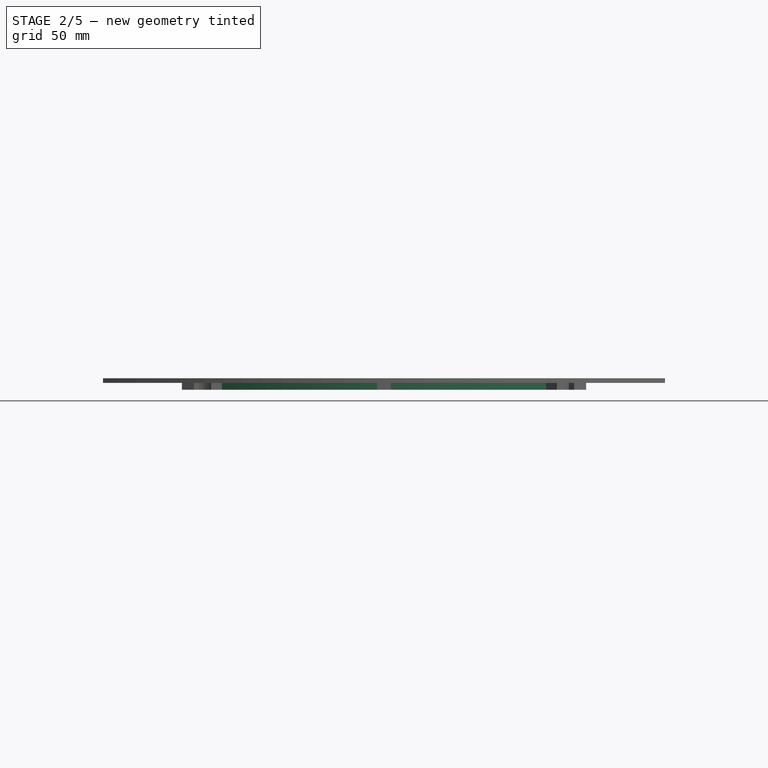
[diagram: stage 2 of 5 — front view after this stage's code; geometry added in this stage tinted green]
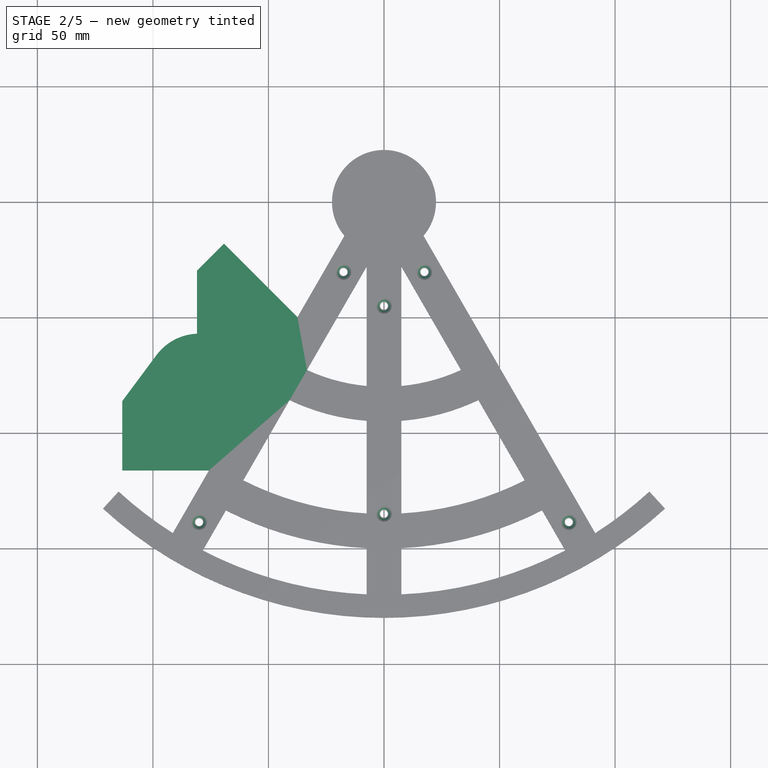
[diagram: stage 2 of 5 — top view after this stage's code; geometry added in this stage tinted green]
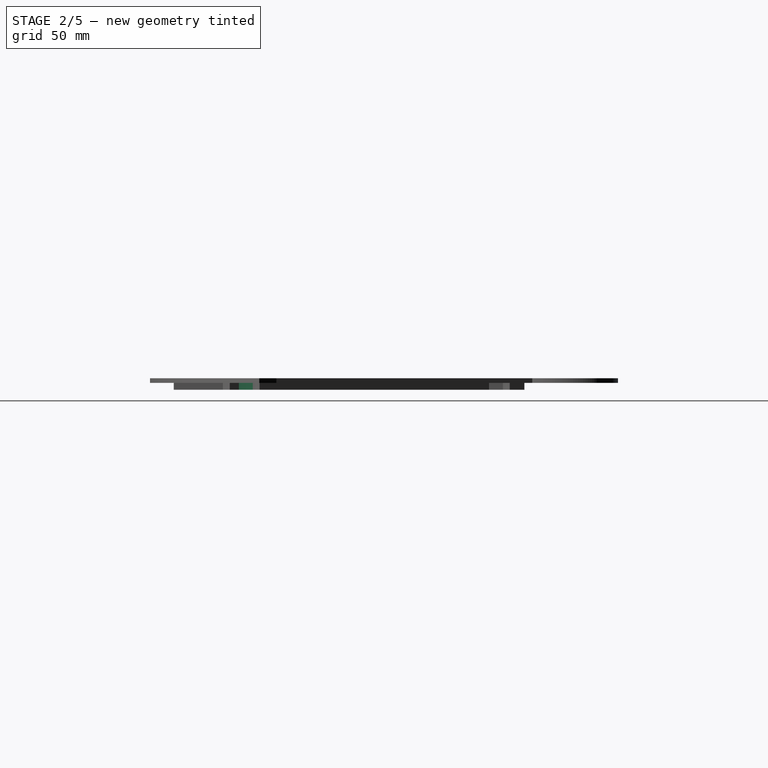
[diagram: stage 2 of 5 — right view after this stage's code; geometry added in this stage tinted green]
FEATURE [PartDesign::Pad] Pad007
  BaseFeature = -> Pad003
  Direction = (0,0,1)
  Length = 3
  Length2 = 10
  Profile = -> Sketch015
  ReferenceAxis = -> Sketch015 [N_Axis]
  Refine = true
  Reversed = true
  Suppressed = false
  Type = 0
FEATURE [PartDesign::Hole] Hole007  label="Holes_Stand"
  BaseFeature = -> Pad007
  CustomThreadClearance = 0
  Depth = 639.366
  DepthType = 1
  Diameter = 3.4
  DrillForDepth = false
  DrillPoint = 1
  DrillPointAngle = 118
  HoleCutCountersinkAngle = 90
  HoleCutCustomValues = false
  HoleCutDepth = 0
  HoleCutDiameter = 6.7
  HoleCutType = 5
  ModelThread = false
  Profile = -> Sketch016
  Suppressed = false
  Tapered = false
  TaperedAngle = 90
  ThreadClass = 0
  ThreadDepth = 639.366
  ThreadDepthType = 0
  ThreadDirection = 0
  ThreadFit = 0
  ThreadSize = 9
  ThreadType = 1
  Threaded = false
  UseCustomThreadClearance = false
FEATURE [PartDesign::Hole] Hole003  label="Hole_Handle"
  BaseFeature = -> Hole007
  CustomThreadClearance = 0
  Depth = 703.91
  DepthType = 1
  Diameter = 3.4
  DrillForDepth = false
  DrillPoint = 1
  DrillPointAngle = 118
  HoleCutCountersinkAngle = 90
  HoleCutCustomValues = false
  HoleCutDepth = 0
  HoleCutDiameter = 6.72
  HoleCutType = 2
  ModelThread = false
  Profile = -> Sketch006
  Suppressed = false
  Tapered = false
  TaperedAngle = 90
  ThreadClass = 0
  ThreadDepth = 639.366
  ThreadDepthType = 0
  ThreadDirection = 0
  ThreadFit = 0
  ThreadSize = 9
  ThreadType = 1
  Threaded = false
  UseCustomThreadClearance = false
  expr: HoleCutDiameter = <<Dimensions>>.handle_countersink_diameter
  expr: ThreadSize = <<Dimensions>>.handle_screw_type
FEATURE [PartDesign::Pad] Pad001  label="Pad_HorizonMirror"
  BaseFeature = -> Hole003
  Direction = (0,0,1)
  Length = 2
  Length2 = 10
  Profile = -> Sketch001
  ReferenceAxis = -> Sketch001 [N_Axis]
  Refine = true
  Suppressed = false
  Type = 0
  expr: Length = Pad.Length
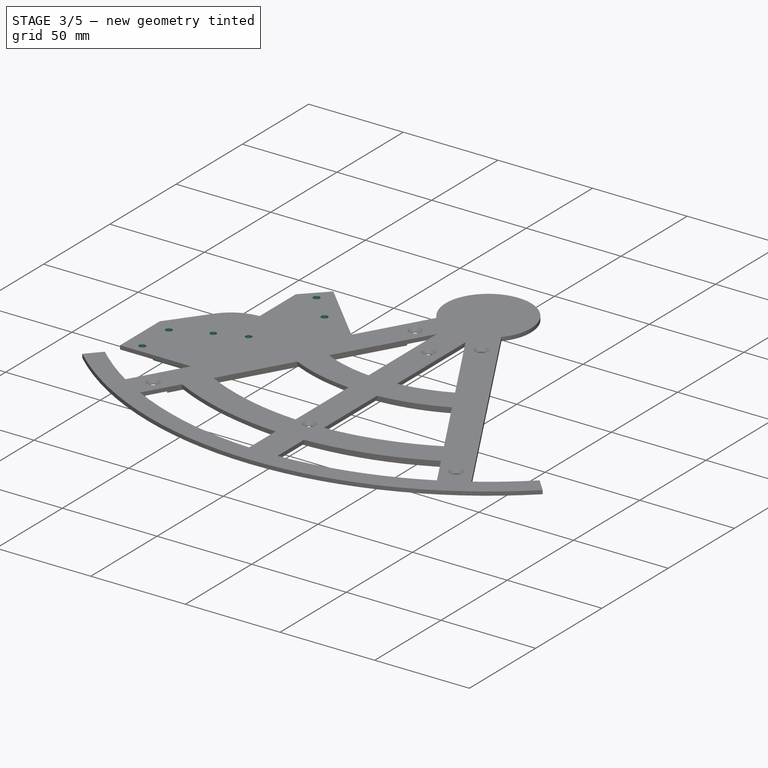
[diagram: stage 3 of 5 — iso view after this stage's code; geometry added in this stage tinted green]
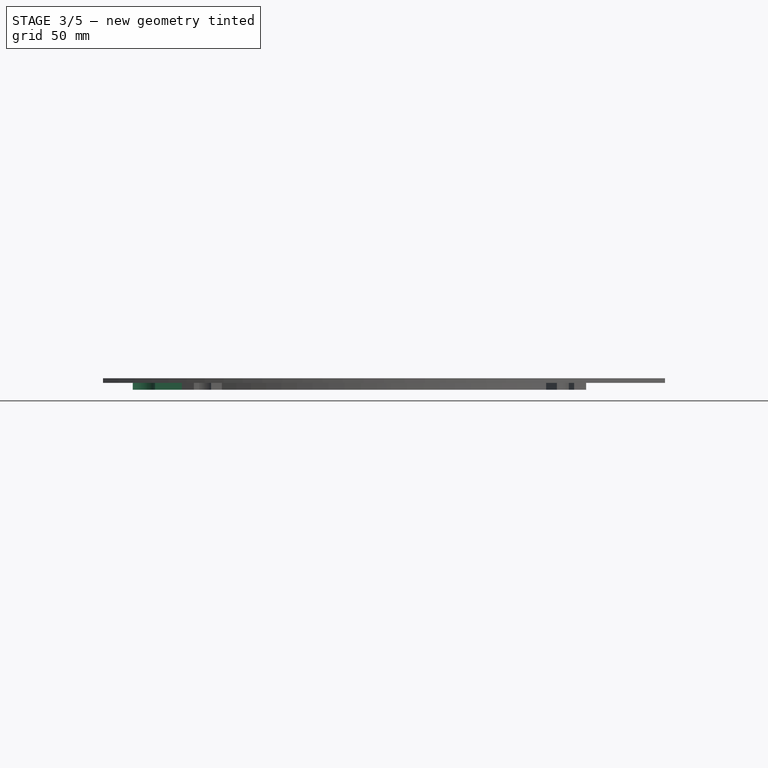
[diagram: stage 3 of 5 — front view after this stage's code; geometry added in this stage tinted green]
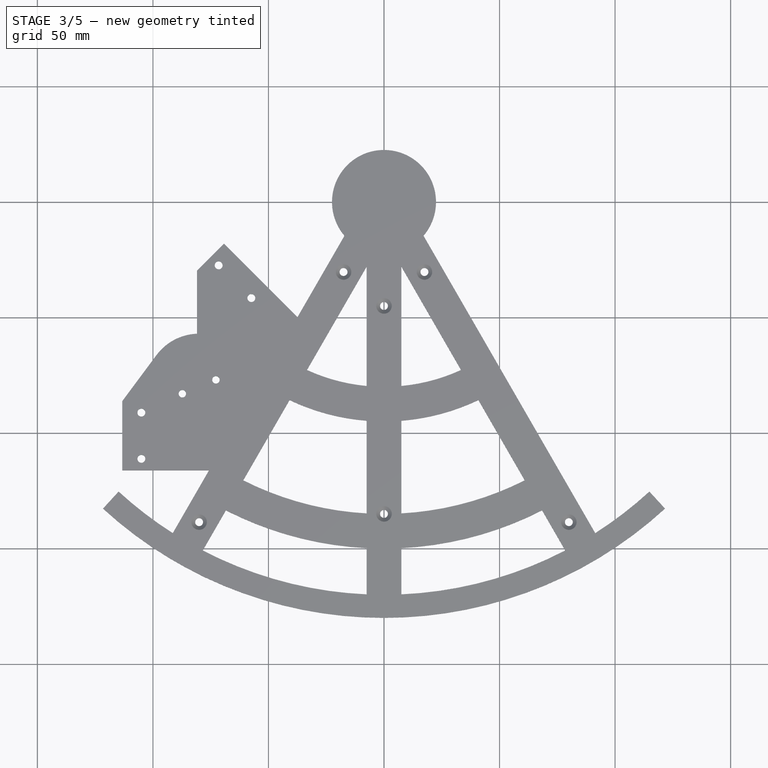
[diagram: stage 3 of 5 — top view after this stage's code; geometry added in this stage tinted green]
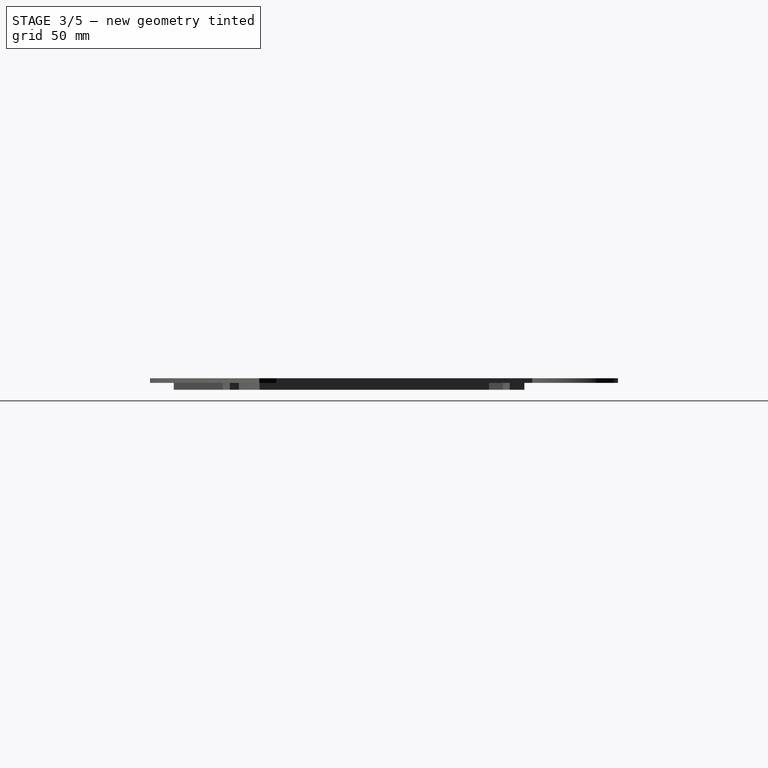
[diagram: stage 3 of 5 — right view after this stage's code; geometry added in this stage tinted green]
FEATURE [Sketcher::SketchObject] Sketch018
  ArcFitTolerance = 0
  AttachmentSupport = -> [DatumPlane]
  ExternalGeometry = -> [Sketch004,Sketch003]
  FullyConstrained = true
  MakeInternals = false
  MapMode = 5
  expr: Constraints[15] = 4.5 + 1.5
  expr: Constraints[8] = 4.5 + 1.5
  sketch-geometry (6):
    g0: LineSegment StartX=38.3938 StartY=-66.5 StartZ=0 EndX=79.0839 EndY=-66.5 EndZ=0
    g1: ArcOfCircle CenterX=85 CenterY=-65.5 CenterZ=0 NormalX=0 NormalY=0 NormalZ=1 AngleXU=0 Radius=6 StartAngle=3.30904 EndAngle=4.58706
    g2: LineSegment StartX=84.25 StartY=-71.4529 StartZ=0 EndX=84.25 EndY=-88.5471 EndZ=0
    g3: LineSegment StartX=79.0839 StartY=-93.5 StartZ=0 EndX=53.9823 EndY=-93.5 EndZ=0
    g4: ArcOfCircle CenterX=85 CenterY=-94.5 CenterZ=0 NormalX=0 NormalY=0 NormalZ=1 AngleXU=0 Radius=6 StartAngle=1.69612 EndAngle=2.97414
    g5: LineSegment StartX=38.3938 StartY=-66.5 StartZ=0 EndX=53.9823 EndY=-93.5 EndZ=0
  constraints (18):
    c: PointOnObject(g0,g-4)
    c: Horizontal(g0)
    c: Parallel(g3,g-5)
    c: DistanceY(g0,g-4) = 4.5
    c: Coincident(g1,g-7)
    c: Coincident(g0,g1)
    c: Coincident(g2,g1)
    c: Parallel(g2,g-6)
    c: Radius(g1) = 6
    c: DistanceX(g1,g-6) = 4.5
    c: Coincident(g4,g-8)
    c: Coincident(g4,g2)
    c: Coincident(g4,g3)
    c: PointOnObject(g3,g-4)
    c: DistanceY(g-5,g3) = 4.5
    c: Radius(g4) = 6
    c: Coincident(g5,g0)
    c: Coincident(g5,g3)
FEATURE [Sketcher::SketchObject] Sketch019
  ArcFitTolerance = 0
  AttachmentSupport = -> [DatumPlane]
  ExternalGeometry = -> [Sketch001,Sketch013,Sketch002,Sketch010]
  FullyConstrained = true
  MakeInternals = false
  MapMode = 5
  sketch-geometry (19):
    g0: LineSegment StartX=-34.2935 StartY=-59.3981 StartZ=0 EndX=-51.4408 EndY=-42.2509 EndZ=0
    g1: LineSegment StartX=-76.4156 StartY=-30.9544 StartZ=0 EndX=-76.4156 EndY=-61.8506 EndZ=0
    g2: ArcOfCircle CenterX=-80 CenterY=-80 CenterZ=0 NormalX=0 NormalY=0 NormalZ=1 AngleXU=0 Radius=18.5 StartAngle=1.37581 EndAngle=2.50249
    g3: LineSegment StartX=-94.8486 StartY=-68.9651 StartZ=0 EndX=-107.215 EndY=-85.6059 EndZ=0
    g4: LineSegment StartX=-108.75 StartY=-95.8657 StartZ=0 EndX=-108.75 EndY=-106.498 EndZ=0
    g5: LineSegment StartX=-99.0209 StartY=-111.682 StartZ=0 EndX=-64.4796 EndY=-111.682 EndZ=0
    g6: LineSegment StartX=-64.4796 StartY=-111.682 StartZ=0 EndX=-34.2935 EndY=-59.3981 EndZ=0
    g7: ArcOfCircle CenterX=-71.5465 CenterY=-27.4485 CenterZ=0 NormalX=0 NormalY=0 NormalZ=1 AngleXU=0 Radius=6 StartAngle=3.76563 EndAngle=6.17292
    g8: LineSegment [constr] StartX=-76.4156 StartY=-30.9544 StartZ=0 EndX=-80.9156 EndY=-30.9544 EndZ=0
    g9: LineSegment [constr] StartX=-98.4605 StartY=-66.281 StartZ=0 EndX=-94.8486 EndY=-68.9651 EndZ=0
    g10: Circle CenterX=-72.7383 CenterY=-76.9921 CenterZ=0 NormalX=0 NormalY=0 NormalZ=1 AngleXU=0 Radius=6
    g11: Circle CenterX=-87.2617 CenterY=-83.0079 CenterZ=0 NormalX=0 NormalY=0 NormalZ=1 AngleXU=0 Radius=6
    g12: ArcOfCircle CenterX=-105 CenterY=-91.182 CenterZ=0 NormalX=0 NormalY=0 NormalZ=1 AngleXU=0 Radius=6 StartAngle=4.03726 EndAngle=8.23215
    g13: ArcOfCircle CenterX=-57.4043 CenterY=-41.5906 CenterZ=0 NormalX=0 NormalY=0 NormalZ=1 AngleXU=0 Radius=6 StartAngle=1.68106 EndAngle=6.17292
    g14: LineSegment StartX=-58.0646 StartY=-35.6271 StartZ=0 EndX=-65.5829 EndY=-28.1087 EndZ=0
    g15: ArcOfCircle CenterX=-105 CenterY=-111.182 CenterZ=0 NormalX=0 NormalY=0 NormalZ=1 AngleXU=0 Radius=6 StartAngle=6.19976 EndAngle=8.52911
    g16: LineSegment [constr] StartX=-51.4408 StartY=-42.2509 StartZ=0 EndX=-48.2588 EndY=-39.0689 EndZ=0
    g17: LineSegment [constr] StartX=-108.75 StartY=-95.8657 StartZ=0 EndX=-113.25 EndY=-95.8657 EndZ=0
    g18: LineSegment [constr] StartX=-99.0209 StartY=-111.682 StartZ=0 EndX=-99.0209 EndY=-116.182 EndZ=0
  constraints (53):
    c: PointOnObject(g0,g-3)
    c: PointOnObject(g5,g-3)
    c: Coincident(g5,g6)
    c: Coincident(g6,g0)
    c: Parallel(g0,g-4)
    c: Coincident(g7,g-16)
    c: Radius(g7) = 6
    c: Coincident(g14,g7)
    c: Coincident(g1,g7)
    c: Coincident(g8,g1)
    c: PointOnObject(g8,g-6)
    c: Perpendicular(g8,g1)
    c: Distance(g8) = 4.5
    c: Coincident(g-7,g2)
    c: Parallel(g-6,g1)
    c: Coincident(g2,g1)
    c: Coincident(g9,g-8)
    c: Coincident(g9,g2)
    c: Perpendicular(g9,g-8)
    c: Distance(g9) = 4.5
    c: Parallel(g-8,g3)
    c: Coincident(g10,g-15)
    c: Coincident(g11,g-13)
    c: Diameter(g10) = 12
    c: Diameter(g11) = 12
    c: Coincident(g12,g-12)
    c: Radius(g12) = 6
    c: Coincident(g13,g-14)
    c: Radius(g13) = 6
    c: Coincident(g0,g13)
    c: Coincident(g14,g13)
    c: Tangent(g14,g0)
    c: Coincident(g15,g-11)
    c: Radius(g15) = 6
    c: Coincident(g4,g15)
    c: Coincident(g5,g15)
    c: Coincident(g3,g12)
    c: Coincident(g4,g12)
    c: Parallel(g4,g-10)
    c: Coincident(g16,g0)
    c: PointOnObject(g16,g-4)
    c: Perpendicular(g0,g16)
    c: Distance(g16) = 4.5
    c: Coincident(g2,g3)
    c: Coincident(g17,g4)
    c: PointOnObject(g17,g-10)
    c: Perpendicular(g-10,g17)
    c: Distance(g17) = 4.5
    c: Coincident(g18,g5)
    c: PointOnObject(g18,g-9)
    c: Perpendicular(g-9,g18)
    c: Equal(g18,g17)
    c: Parallel(g5,g-9)
FEATURE [PartDesign::Pad] Pad009
  BaseFeature = -> Pad001
  Direction = (0,0,1)
  Length = 3
  Length2 = 10
  Profile = -> Sketch019
  ReferenceAxis = -> Sketch019 [N_Axis]
  Refine = true
  Reversed = true
  Suppressed = false
  Type = 0
FEATURE [PartDesign::Hole] Hole001  label="Holes_HorizonMirror"
  BaseFeature = -> Pad009
  CustomThreadClearance = 0
  Depth = 25
  DepthType = 0
  Diameter = 3.2
  DrillForDepth = false
  DrillPoint = 1
  DrillPointAngle = 118
  HoleCutCountersinkAngle = 90
  HoleCutCustomValues = false
  HoleCutDepth = 0
  HoleCutDiameter = 6.1
  HoleCutType = 0
  ModelThread = false
  Profile = -> Sketch002
  Reversed = true
  Suppressed = false
  Tapered = false
  TaperedAngle = 90
  ThreadClass = 0
  ThreadDepth = 25
  ThreadDepthType = 0
  ThreadDirection = 0
  ThreadFit = 1
  ThreadSize = 9
  ThreadType = 1
  Threaded = false
  UseCustomThreadClearance = false
  expr: ThreadSize = <<Dimensions>>.horizon_mirror_screw_type
FEATURE [PartDesign::Hole] Hole005  label="Holes_IndexShade"
  BaseFeature = -> Hole001
  CustomThreadClearance = 0
  Depth = 25
  DepthType = 0
  Diameter = 3.4
  DrillForDepth = false
  DrillPoint = 1
  DrillPointAngle = 118
  HoleCutCountersinkAngle = 90
  HoleCutCustomValues = false
  HoleCutDepth = 0
  HoleCutDiameter = 6.1
  HoleCutType = 0
  ModelThread = false
  Profile = -> Sketch010
  Suppressed = false
  Tapered = false
  TaperedAngle = 90
  ThreadClass = 0
  ThreadDepth = 25
  ThreadDepthType = 0
  ThreadDirection = 0
  ThreadFit = 0
  ThreadSize = 9
  ThreadType = 1
  Threaded = false
  UseCustomThreadClearance = false
FEATURE [PartDesign::Hole] Hole006  label="Holes_HorizonShade"
  BaseFeature = -> Hole005
  CustomThreadClearance = 0
  Depth = 711.3
  DepthType = 1
  Diameter = 3.4
  DrillForDepth = false
  DrillPoint = 1
  DrillPointAngle = 118
  HoleCutCountersinkAngle = 90
  HoleCutCustomValues = false
  HoleCutDepth = 0
  HoleCutDiameter = 6.1
  HoleCutType = 0
  ModelThread = false
  Profile = -> Sketch013
  Suppressed = false
  Tapered = false
  TaperedAngle = 90
  ThreadClass = 0
  ThreadDepth = 711.3
  ThreadDepthType = 0
  ThreadDirection = 0
  ThreadFit = 0
  ThreadSize = 9
  ThreadType = 1
  Threaded = false
  UseCustomThreadClearance = false
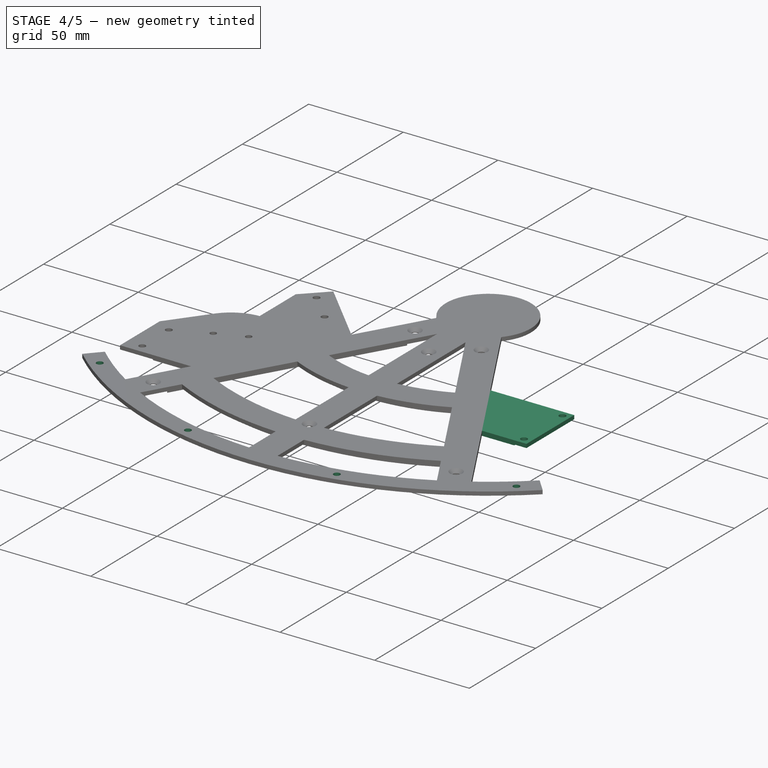
[diagram: stage 4 of 5 — iso view after this stage's code; geometry added in this stage tinted green]
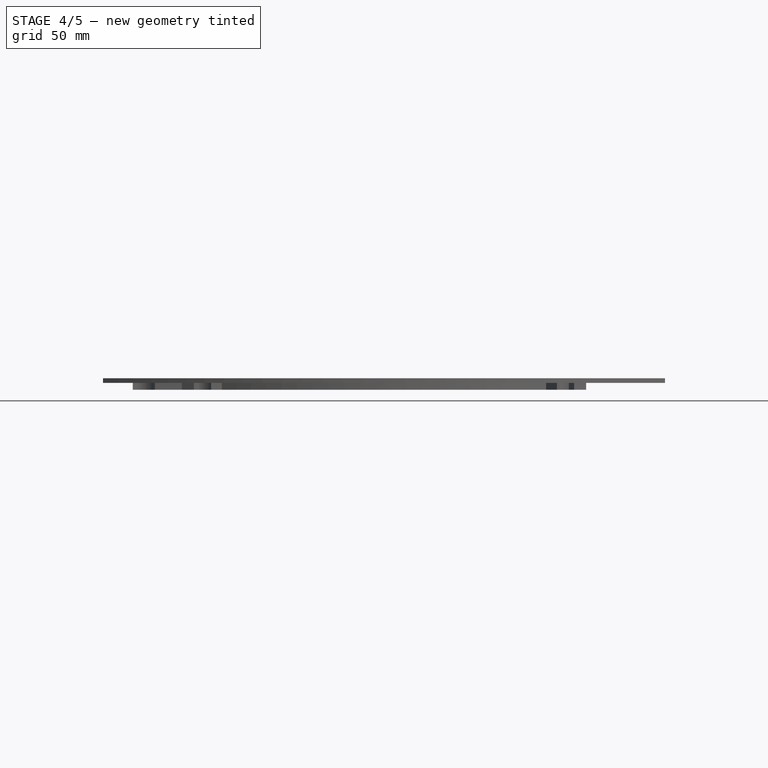
[diagram: stage 4 of 5 — front view after this stage's code; geometry added in this stage tinted green]
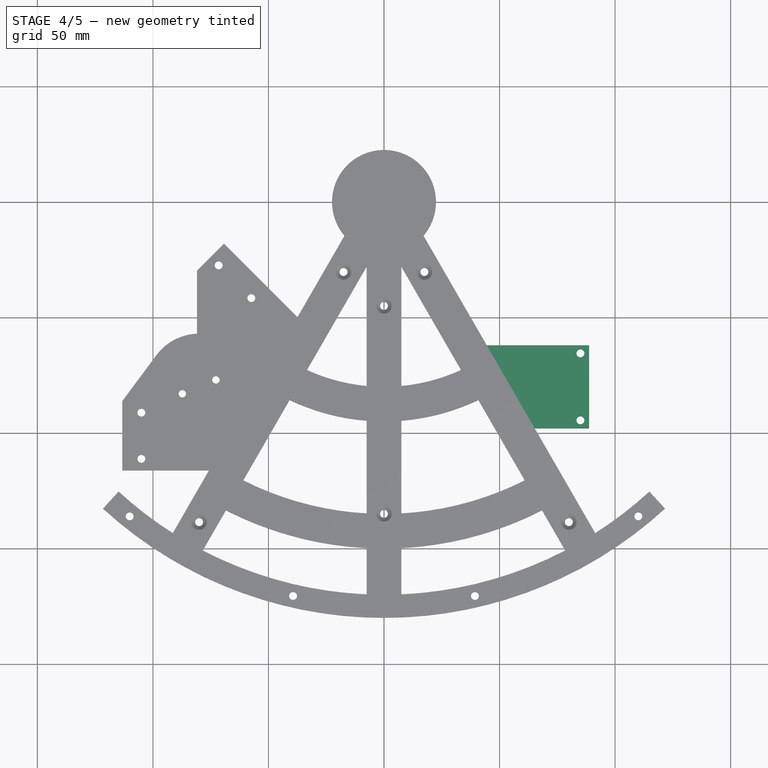
[diagram: stage 4 of 5 — top view after this stage's code; geometry added in this stage tinted green]
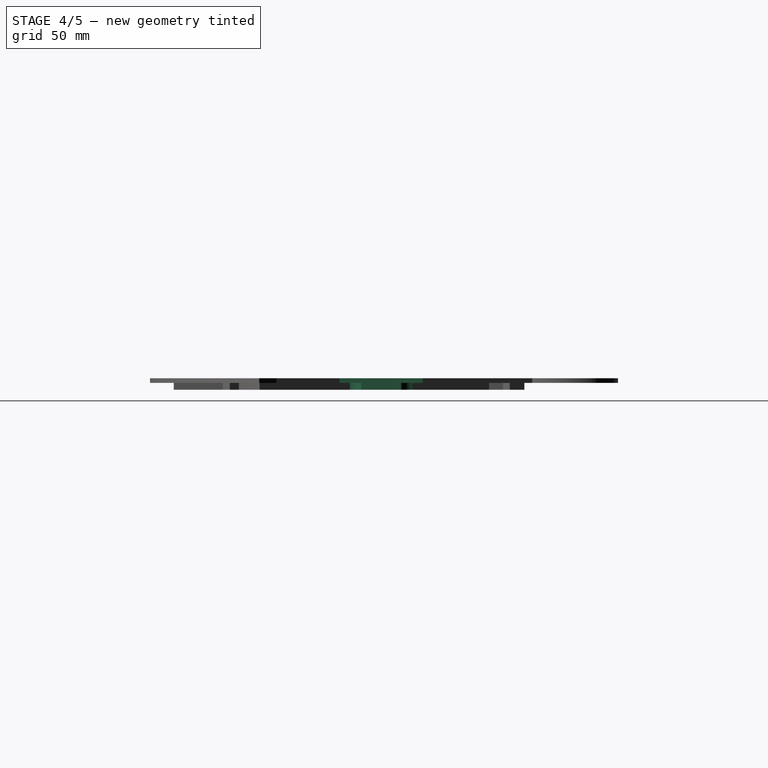
[diagram: stage 4 of 5 — right view after this stage's code; geometry added in this stage tinted green]
FEATURE [PartDesign::Pad] Pad002
  BaseFeature = -> Hole006
  Direction = (0,0,1)
  Length = 2
  Length2 = 10
  Profile = -> Sketch004
  ReferenceAxis = -> Sketch004 [N_Axis]
  Refine = true
  Suppressed = false
  Type = 0
  expr: Length = Pad.Length
FEATURE [PartDesign::Hole] Hole002
  BaseFeature = -> Pad002
  CustomThreadClearance = 0
  Depth = 639.366
  DepthType = 1
  Diameter = 3.4
  DrillForDepth = false
  DrillPoint = 1
  DrillPointAngle = 118
  HoleCutCountersinkAngle = 90
  HoleCutCustomValues = false
  HoleCutDepth = 0
  HoleCutDiameter = 6.1
  HoleCutType = 0
  ModelThread = false
  Profile = -> Sketch003
  Reversed = true
  Suppressed = false
  Tapered = false
  TaperedAngle = 90
  ThreadClass = 0
  ThreadDepth = 639.366
  ThreadDepthType = 0
  ThreadDirection = 0
  ThreadFit = 0
  ThreadSize = 9
  ThreadType = 1
  Threaded = false
  UseCustomThreadClearance = false
  expr: ThreadSize = <<Dimensions>>.viewscope_screw_type
FEATURE [PartDesign::Pad] Pad008
  BaseFeature = -> Hole002
  Direction = (0,0,1)
  Length = 3
  Length2 = 10
  Profile = -> Sketch018
  ReferenceAxis = -> Sketch018 [N_Axis]
  Refine = true
  Reversed = true
  Suppressed = false
  Type = 0
FEATURE [PartDesign::Hole] Hole
  BaseFeature = -> Pad008
  CustomThreadClearance = 0
  Depth = 641.896
  DepthType = 1
  Diameter = 3.4
  DrillForDepth = false
  DrillPoint = 1
  DrillPointAngle = 118
  HoleCutCountersinkAngle = 90
  HoleCutCustomValues = false
  HoleCutDepth = 0
  HoleCutDiameter = 6.1
  HoleCutType = 0
  ModelThread = false
  Profile = -> Binder
  Reversed = true
  Suppressed = false
  Tapered = false
  TaperedAngle = 90
  ThreadClass = 0
  ThreadDepth = 641.896
  ThreadDepthType = 0
  ThreadDirection = 0
  ThreadFit = 0
  ThreadSize = 9
  ThreadType = 1
  Threaded = false
  UseCustomThreadClearance = false
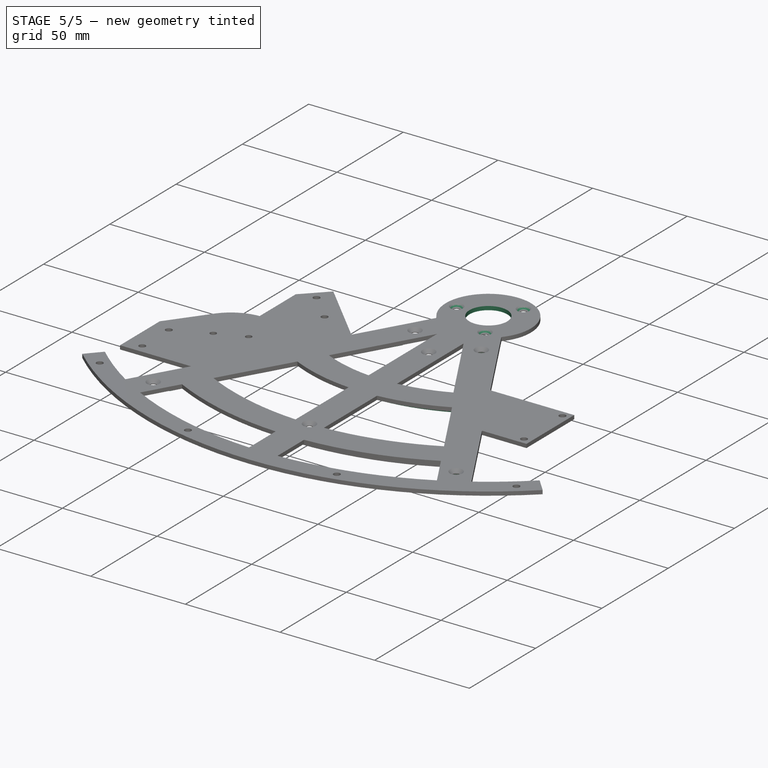
[diagram: stage 5 of 5 — iso view after this stage's code; geometry added in this stage tinted green]
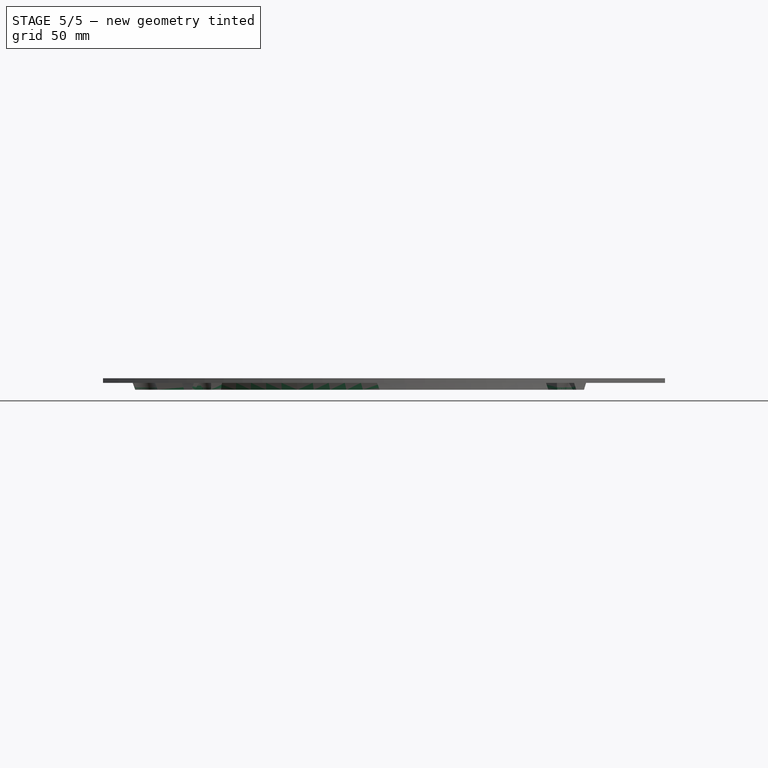
[diagram: stage 5 of 5 — front view after this stage's code; geometry added in this stage tinted green]
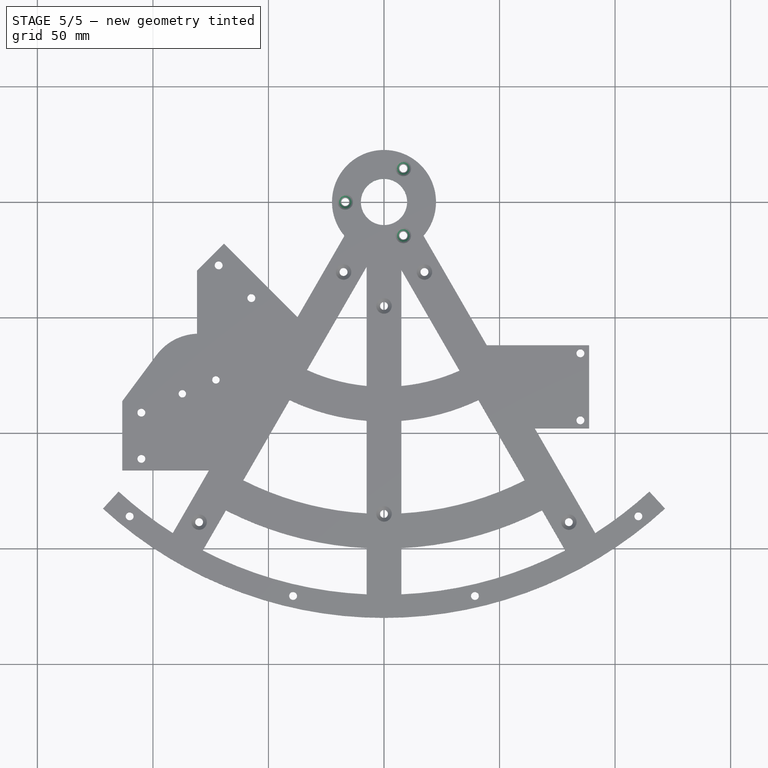
[diagram: stage 5 of 5 — top view after this stage's code; geometry added in this stage tinted green]
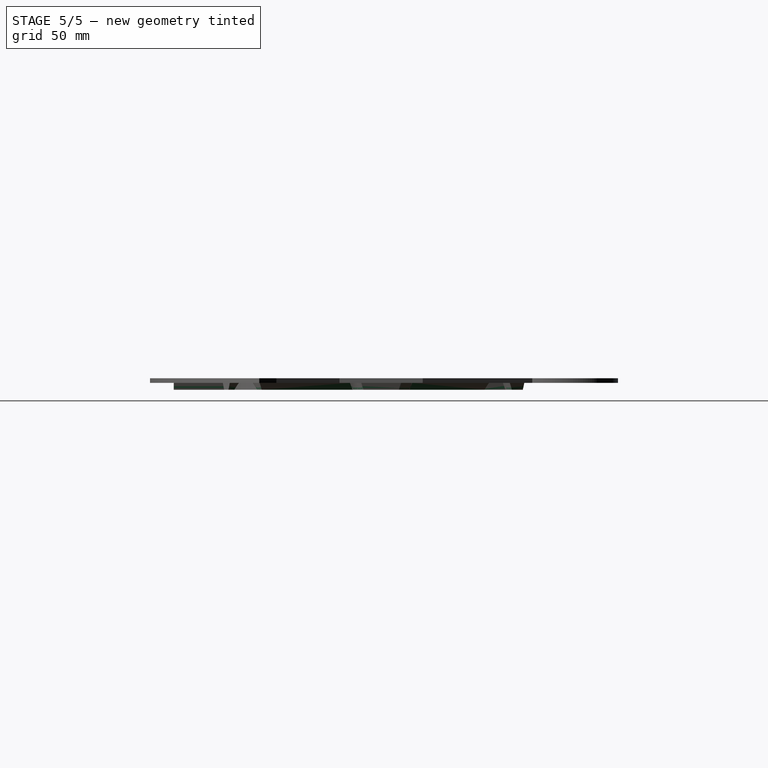
[diagram: stage 5 of 5 — right view after this stage's code; geometry added in this stage tinted green]
FEATURE [PartDesign::Pocket] Pocket
  BaseFeature = -> Hole
  Direction = (0,0,-1)
  Length = 5
  Length2 = 5
  Profile = -> Sketch007
  ReferenceAxis = -> Sketch007 [N_Axis]
  Reversed = true
  Suppressed = false
  Type = 1
FEATURE [PartDesign::Hole] Hole004
  BaseFeature = -> Pocket
  CustomThreadClearance = 0
  Depth = 703.91
  DepthType = 1
  Diameter = 3.4
  DrillForDepth = false
  DrillPoint = 1
  DrillPointAngle = 118
  HoleCutCountersinkAngle = 90
  HoleCutCustomValues = false
  HoleCutDepth = 0
  HoleCutDiameter = 6.7
  HoleCutType = 5
  ModelThread = false
  Profile = -> Sketch008
  Suppressed = false
  Tapered = false
  TaperedAngle = 90
  ThreadClass = 0
  ThreadDepth = 639.366
  ThreadDepthType = 0
  ThreadDirection = 0
  ThreadFit = 0
  ThreadSize = 9
  ThreadType = 1
  Threaded = false
  UseCustomThreadClearance = false
  expr: ThreadSize = <<Dimensions>>.bearing_housing_screw_type
FEATURE [PartDesign::PolarPattern] PolarPattern
  Angle = 360
  Axis = -> Z_Axis
  BaseFeature = -> Hole004
  Mode = 0
  Occurrences = 3
  Offset = 120
  Originals = -> [Hole004]
  Suppressed = false
  TransformMode = 0
FEATURE [PartDesign::Draft] Draft001
  Angle = 20
  Base = -> PolarPattern [Face52,Face54,Face56,Face58,Face24,Face60,Face25,Face27,Face62,Face64,Face66,Face68,Face40,Face41,Face43,Face70,Face72,Face74,Face75,Face73,Face71,Face69,Face65,Face61,Face59,Face57,Face55,Face98,Face96,Face51,Face53,Face49,Face47,Face46,Face48,Face50,Face143,Face144,Face77,Face79,+21 more]
  BaseFeature = -> PolarPattern
  NeutralPlane = -> DatumPlane
  Refine = true
  Reversed = true
  SupportTransform = false
  Suppressed = false
FEATURE [PartDesign::Line] DatumLine  label="Screw_Stand1"
  AttacherType = Attacher::AttachEngineLine
  AttachmentSupport = -> [Sketch016]
  Length = 20
  MapMode = 19
  Placement = pos=(-80,-138.564,2) rot=(0,0,1;0rad)
  ResizeMode = 0
FEATURE [PartDesign::Line] DatumLine001  label="Screw_Stand3"
  AttacherType = Attacher::AttachEngineLine
  AttachmentSupport = -> [Sketch016]
  Length = 20
  MapMode = 19
  Placement = pos=(17.5,-30.3109,2) rot=(0,0,1;0rad)
  ResizeMode = 0
FEATURE [PartDesign::Line] DatumLine002  label="Screw_Stand4"
  AttacherType = Attacher::AttachEngineLine
  AttachmentSupport = -> [Sketch016]
  Length = 20
  MapMode = 19
  Placement = pos=(-17.5,-30.3109,2) rot=(0,0,1;0rad)
  ResizeMode = 0
FEATURE [PartDesign::Line] DatumLine003  label="Screw_Stand2"
  AttacherType = Attacher::AttachEngineLine
  AttachmentSupport = -> [Sketch016]
  Length = 20
  MapMode = 19
  Placement = pos=(80,-138.564,2) rot=(0,0,1;0rad)
  ResizeMode = 0
FEATURE [PartDesign::Line] DatumLine004  label="Screw_Viewscope1"
  AttacherType = Attacher::AttachEngineLine
  AttachmentSupport = -> [Sketch003]
  Length = 20
  MapMode = 19
  Placement = pos=(85,-65.5,0) rot=(0,0,1;0rad)
  ResizeMode = 0
FEATURE [PartDesign::Line] DatumLine005  label="Screw_Viewscope2"
  AttacherType = Attacher::AttachEngineLine
  AttachmentSupport = -> [Sketch003]
  Length = 20
  MapMode = 19
  Placement = pos=(85,-94.5,0) rot=(0,0,1;0rad)
  ResizeMode = 0
FEATURE [PartDesign::Body] Body  label="Frame"
  AllowCompound = false
  Group = -> [DatumPlane,DatumPlane001,LCS_Origin,Pad,Pad006,Sketch014,Mirrored,Pad003,Sketch009,Sketch,Sketch006,Binder,Sketch001,Sketch002,Sketch015,Pad007,Sketch016,Hole007,DatumLine,DatumLine003,DatumLine001,DatumLine002,Hole003,LCS_Handle,HoleAxis_1,HoleAxis_2,Pad001,Sketch019,Pad009,Hole001,Local_CS,Hole005,Local_CS005,Hole006,Local_CS006,Sketch003,Sketch004,Pad002,Hole002,Local_CS001,Sketch018,+15 more]
  Origin = -> Origin
  Tip = -> Draft001
FEATURE [TechDraw::DrawViewPart] View
  CoarseView = false
  Direction = (0,0,1)
  Focus = 100
  HardHidden = false
  IsoCount = 0
  IsoHidden = false
  IsoVisible = false
  LockPosition = false
  Perspective = false
  Rotation = -45
  ScaleType = 0
  ScrubCount = 0
  SeamHidden = false
  SeamVisible = false
  SmoothHidden = false
  SmoothVisible = true
  Source = -> [Body]
  X = 173.52
  XDirection = (1,0,0)
  Y = 132.141
FEATURE [TechDraw::DrawPage] Page
  KeepUpdated = true
  NextBalloonIndex = 1
  ProjectionType = 0
  Template = -> Template
  Views = -> [View]
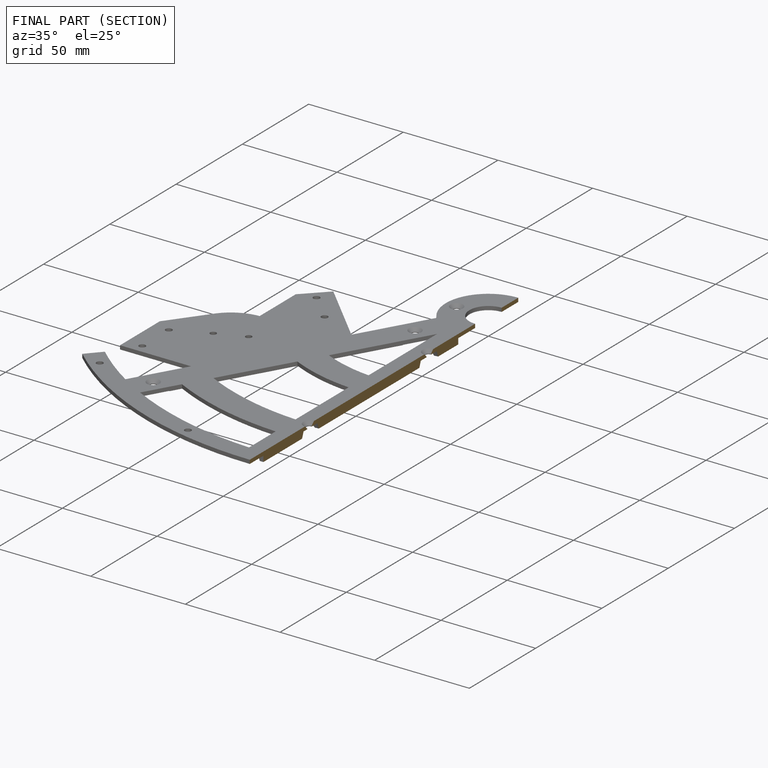
[diagram: finished part — half-section view (interior)]
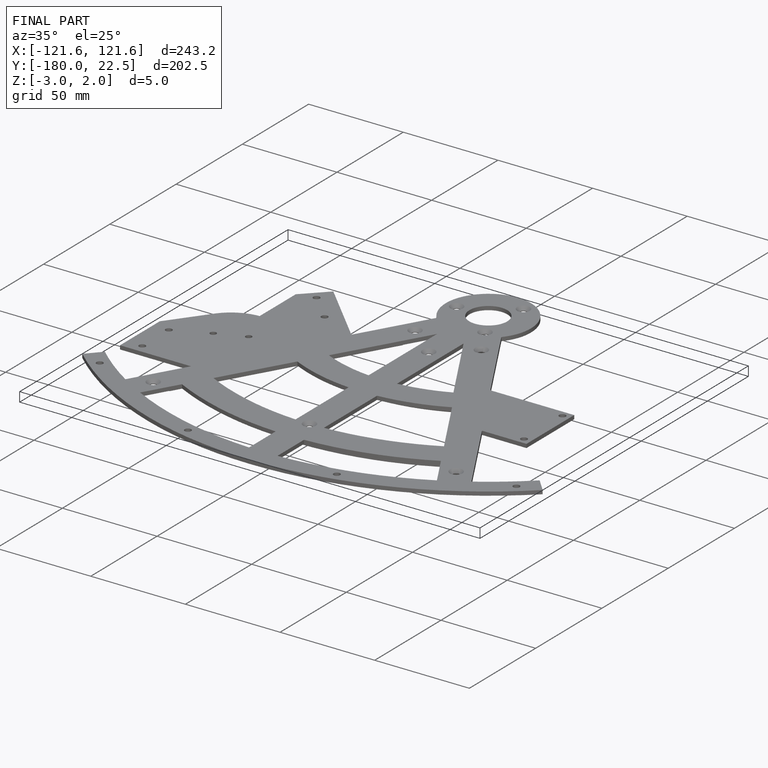
[diagram: finished part — iso view with bounding-box wireframe]
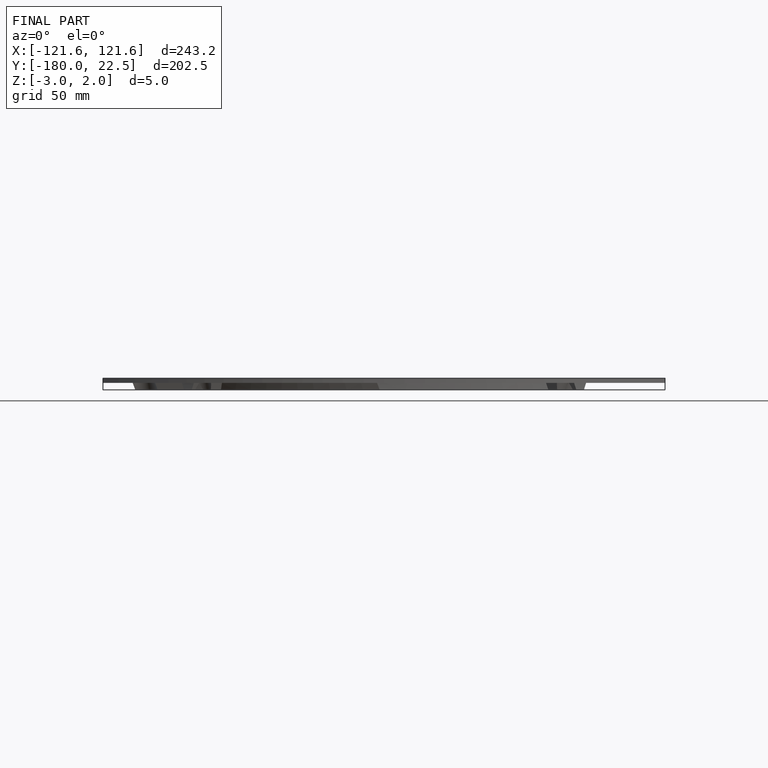
[diagram: finished part — front view with bounding-box wireframe]
